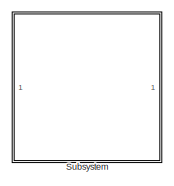
[diagram: root canvas - part 1/3, top right region]
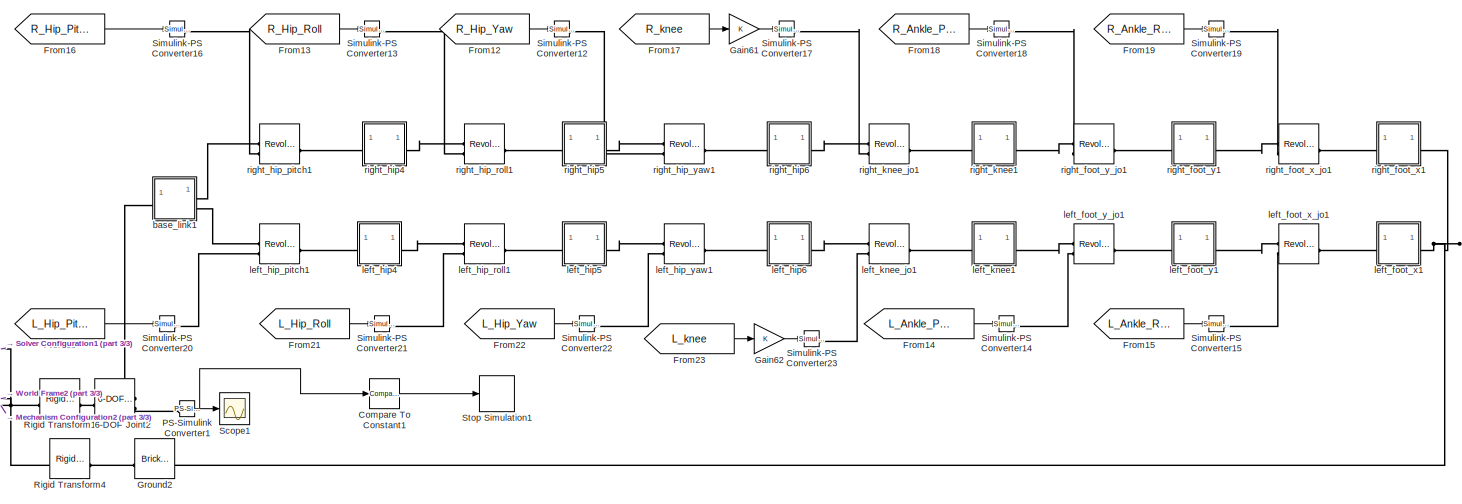
[diagram: root canvas - part 2/3, bottom center region]
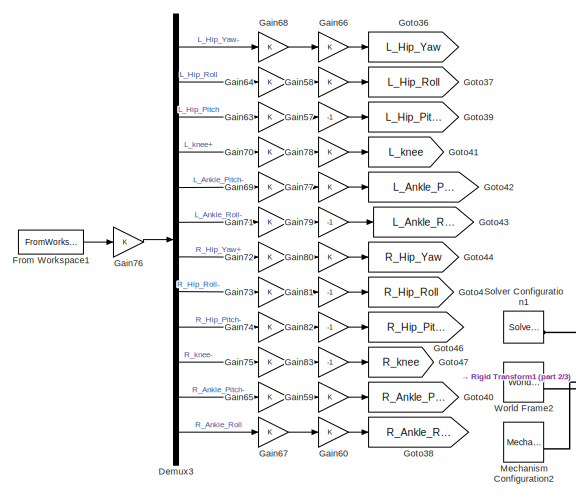
[diagram: root canvas - part 3/3, bottom left region]
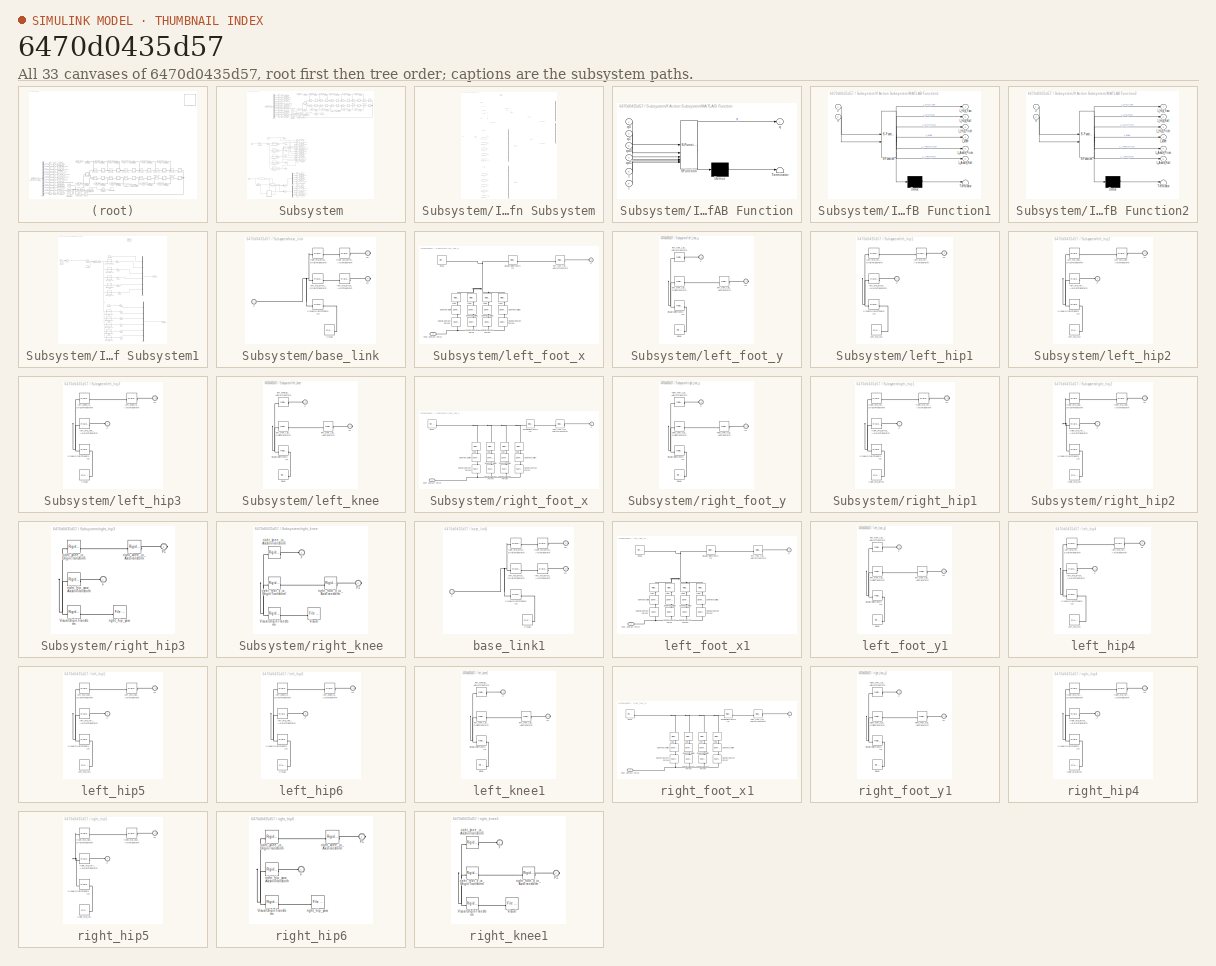
[diagram: thumbnail index - all 33 canvases of the model, root first then tree order]
MODEL slx_6470d0435d57
KIND model
CONFIG AbsTol = auto
CONFIG EnableMultiTasking = off
CONFIG FixedStep = auto
CONFIG InitFcn = k=0.0001;
CONFIG MaxStep = auto
CONFIG MinStep = auto
CONFIG PreLoadFcn = k=0.0001;
CONFIG RelTol = 1e-3
CONFIG SampleTimeConstraint = Unconstrained
CONFIG SolverName = FixedStepAuto
CONFIG StartTime = 0.0
CONFIG StopTime = 90
BLOCK [Reference] 6-DOF Joint2  REF=sm_lib/Joints/6-DOF Joint
  SourceBlock = sm_lib/Joints/6-DOF Joint
  SourceType = 6-DOF Joint
BLOCK [Reference] Compare To Constant1  REF=simulink/Logic and Bit
Operations/Compare
To Constant
  SourceBlock = simulink/Logic and Bit\nOperations/Compare\nTo Constant
  SourceType = Compare To Constant
BLOCK [Demux] Demux3
  Outputs = 12
BLOCK [FromWorkspace] From Workspace1
  VariableName = q
BLOCK [From] From12
  GotoTag = R_Hip_Yaw
BLOCK [From] From13
  GotoTag = R_Hip_Roll
BLOCK [From] From14
  GotoTag = L_Ankle_Pitch
BLOCK [From] From15
  GotoTag = L_Ankle_Roll
BLOCK [From] From16
  GotoTag = R_Hip_Pitch
BLOCK [From] From17
  GotoTag = R_knee
BLOCK [From] From18
  GotoTag = R_Ankle_Pitch
BLOCK [From] From19
  GotoTag = R_Ankle_Roll
BLOCK [From] From20
  GotoTag = L_Hip_Pitch
BLOCK [From] From21
  GotoTag = L_Hip_Roll
BLOCK [From] From22
  GotoTag = L_Hip_Yaw
BLOCK [From] From23
  GotoTag = L_knee
BLOCK [Gain] Gain57
  Gain = -1
BLOCK [Gain] Gain58
BLOCK [Gain] Gain59
BLOCK [Gain] Gain60
BLOCK [Gain] Gain61
BLOCK [Gain] Gain62
BLOCK [Gain] Gain63
BLOCK [Gain] Gain64
BLOCK [Gain] Gain65
BLOCK [Gain] Gain66
BLOCK [Gain] Gain67
BLOCK [Gain] Gain68
BLOCK [Gain] Gain69
BLOCK [Gain] Gain70
BLOCK [Gain] Gain71
BLOCK [Gain] Gain72
BLOCK [Gain] Gain73
BLOCK [Gain] Gain74
BLOCK [Gain] Gain75
BLOCK [Gain] Gain76
BLOCK [Gain] Gain77
BLOCK [Gain] Gain78
BLOCK [Gain] Gain79
  Gain = -1
BLOCK [Gain] Gain80
BLOCK [Gain] Gain81
  Gain = -1
BLOCK [Gain] Gain82
  Gain = -1
BLOCK [Gain] Gain83
  Gain = -1
BLOCK [Goto] Goto36
  GotoTag = L_Hip_Yaw
BLOCK [Goto] Goto37
  GotoTag = L_Hip_Roll
BLOCK [Goto] Goto38
  GotoTag = R_Ankle_Roll
BLOCK [Goto] Goto39
  GotoTag = L_Hip_Pitch
BLOCK [Goto] Goto40
  GotoTag = R_Ankle_Pitch
BLOCK [Goto] Goto41
  GotoTag = L_knee
BLOCK [Goto] Goto42
  GotoTag = L_Ankle_Pitch
BLOCK [Goto] Goto43
  GotoTag = L_Ankle_Roll
BLOCK [Goto] Goto44
  GotoTag = R_Hip_Yaw
BLOCK [Goto] Goto45
  GotoTag = R_Hip_Roll
BLOCK [Goto] Goto46
  GotoTag = R_Hip_Pitch
BLOCK [Goto] Goto47
  GotoTag = R_knee
BLOCK [Reference] Ground2  REF=sm_lib/Body Elements/Brick Solid
  NameLocation = top
  SourceBlock = sm_lib/Body Elements/Brick Solid
  SourceType = Brick Solid
BLOCK [Reference] Mechanism Configuration2  REF=sm_lib/Utilities/Mechanism
Configuration
  SourceBlock = sm_lib/Utilities/Mechanism\nConfiguration
  SourceType = Mechanism\nConfiguration
BLOCK [Reference] PS-Simulink Converter1  REF=nesl_utility/PS-Simulink
Converter
  SourceBlock = nesl_utility/PS-Simulink\nConverter
  SourceType = PS-Simulink\nConverter
BLOCK [Reference] Rigid Transform1  REF=sm_lib/Frames and
Transforms/Rigid
Transform
  SourceBlock = sm_lib/Frames and\nTransforms/Rigid\nTransform
  SourceType = Rigid\nTransform
BLOCK [Reference] Rigid Transform4  REF=sm_lib/Frames and
Transforms/Rigid
Transform
  SourceBlock = sm_lib/Frames and\nTransforms/Rigid\nTransform
  SourceType = Rigid\nTransform
BLOCK [Scope] Scope1
  Floating = off
  NumInputPorts = 1
  ScopeSpecificationString = Simulink.scopes.TimeScopeBlockCfg('CurrentConfiguration', extmgr.ConfigurationSet(extmgr.Configuration('Core','General UI',true),extmgr.Configuration('Core','Source UI',true),extmgr.Configuration('Sources','WiredSimulink',true,'DataLoggingVariableName','ScopeData1'),extmgr.Configuration('Visuals','Time Domain',true,'SerializedDisplays',{struct('MinYLimReal','-0.04674','MaxYLimReal','0.00743','YLab...<+1481ch>
BLOCK [Reference] Simulink-PS Converter12  REF=nesl_utility/Simulink-PS
Converter
  SourceBlock = nesl_utility/Simulink-PS\nConverter
  SourceType = Simulink-PS\nConverter
BLOCK [Reference] Simulink-PS Converter13  REF=nesl_utility/Simulink-PS
Converter
  SourceBlock = nesl_utility/Simulink-PS\nConverter
  SourceType = Simulink-PS\nConverter
BLOCK [Reference] Simulink-PS Converter14  REF=nesl_utility/Simulink-PS
Converter
  SourceBlock = nesl_utility/Simulink-PS\nConverter
  SourceType = Simulink-PS\nConverter
BLOCK [Reference] Simulink-PS Converter15  REF=nesl_utility/Simulink-PS
Converter
  SourceBlock = nesl_utility/Simulink-PS\nConverter
  SourceType = Simulink-PS\nConverter
BLOCK [Reference] Simulink-PS Converter16  REF=nesl_utility/Simulink-PS
Converter
  SourceBlock = nesl_utility/Simulink-PS\nConverter
  SourceType = Simulink-PS\nConverter
BLOCK [Reference] Simulink-PS Converter17  REF=nesl_utility/Simulink-PS
Converter
  SourceBlock = nesl_utility/Simulink-PS\nConverter
  SourceType = Simulink-PS\nConverter
BLOCK [Reference] Simulink-PS Converter18  REF=nesl_utility/Simulink-PS
Converter
  SourceBlock = nesl_utility/Simulink-PS\nConverter
  SourceType = Simulink-PS\nConverter
BLOCK [Reference] Simulink-PS Converter19  REF=nesl_utility/Simulink-PS
Converter
  SourceBlock = nesl_utility/Simulink-PS\nConverter
  SourceType = Simulink-PS\nConverter
BLOCK [Reference] Simulink-PS Converter20  REF=nesl_utility/Simulink-PS
Converter
  SourceBlock = nesl_utility/Simulink-PS\nConverter
  SourceType = Simulink-PS\nConverter
BLOCK [Reference] Simulink-PS Converter21  REF=nesl_utility/Simulink-PS
Converter
  SourceBlock = nesl_utility/Simulink-PS\nConverter
  SourceType = Simulink-PS\nConverter
BLOCK [Reference] Simulink-PS Converter22  REF=nesl_utility/Simulink-PS
Converter
  SourceBlock = nesl_utility/Simulink-PS\nConverter
  SourceType = Simulink-PS\nConverter
BLOCK [Reference] Simulink-PS Converter23  REF=nesl_utility/Simulink-PS
Converter
  SourceBlock = nesl_utility/Simulink-PS\nConverter
  SourceType = Simulink-PS\nConverter
BLOCK [Reference] Solver Configuration1  REF=nesl_utility/Solver
Configuration
  SourceBlock = nesl_utility/Solver\nConfiguration
  SourceType = Solver\nConfiguration
BLOCK [Stop] Stop Simulation1
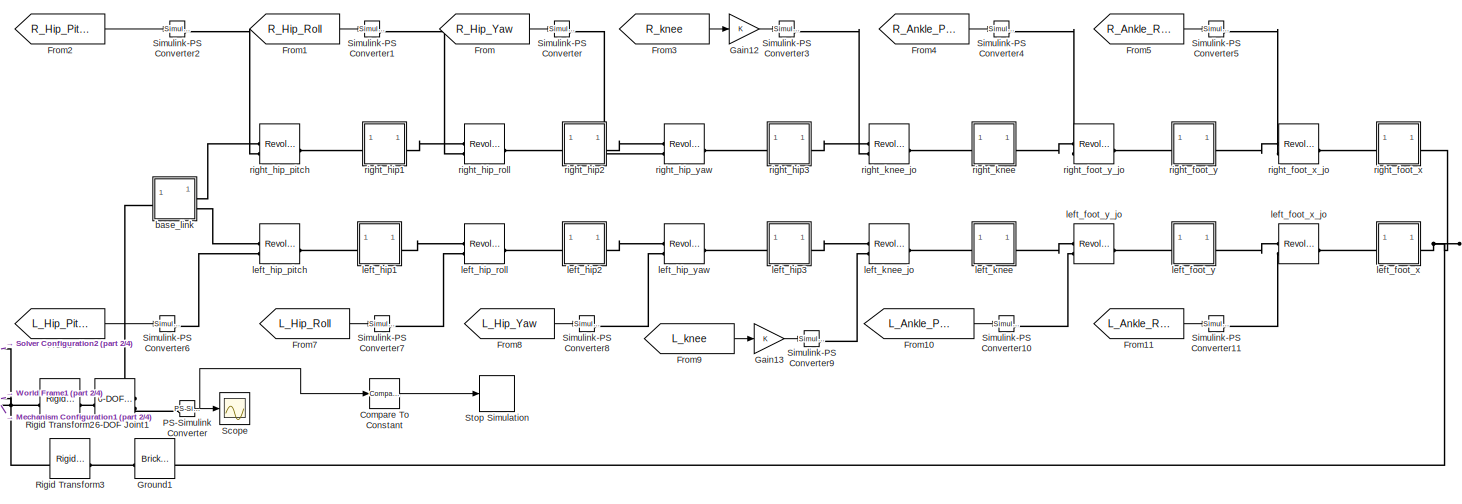
[diagram: Subsystem - part 1/4, top right region]
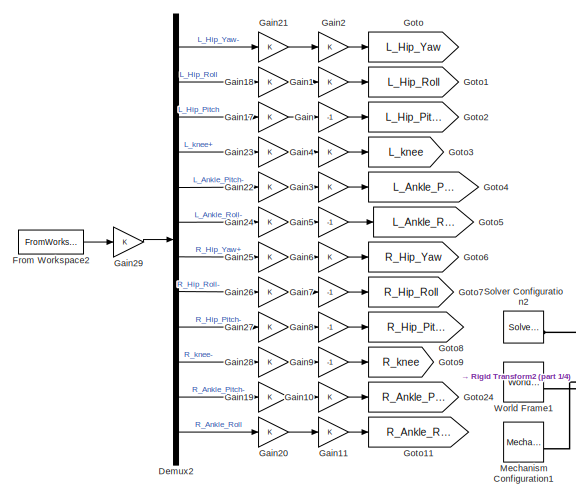
[diagram: Subsystem - part 2/4, top left region]
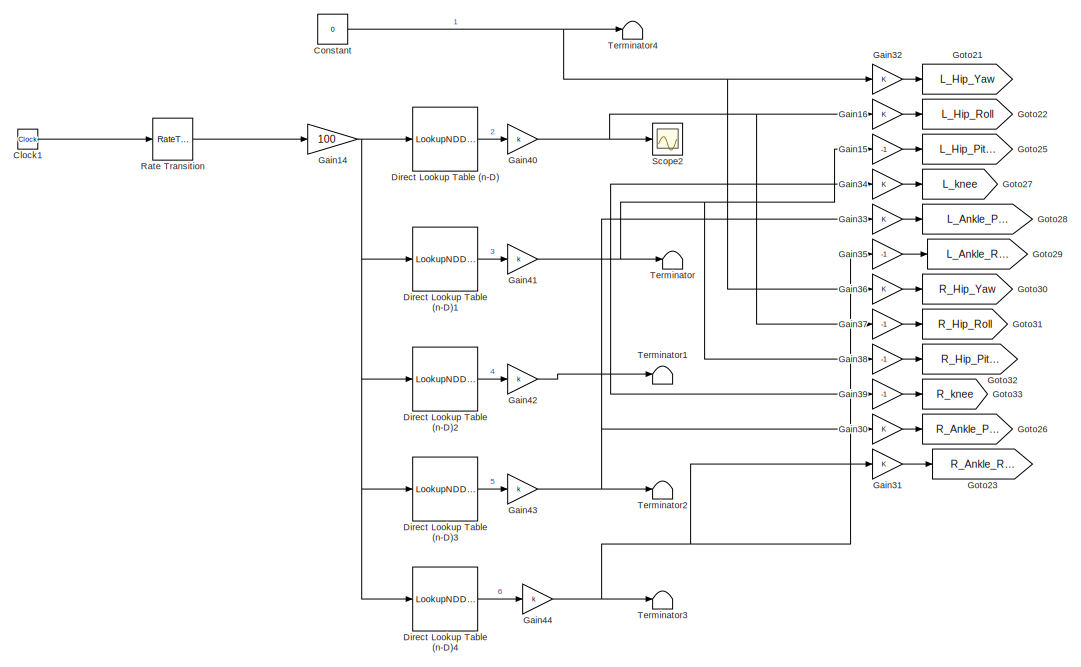
[diagram: Subsystem - part 3/4, middle left region]
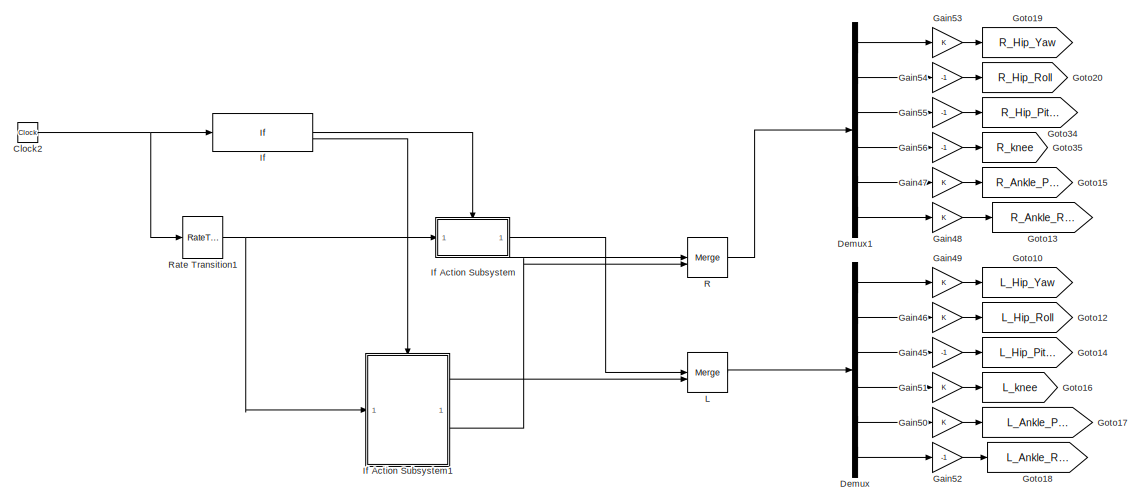
[diagram: Subsystem - part 4/4, bottom left region]
BLOCK [SubSystem] Subsystem
  Commented = on
BLOCK [Reference] Subsystem/6-DOF Joint1  REF=sm_lib/Joints/6-DOF Joint
  Commented = on
  SourceBlock = sm_lib/Joints/6-DOF Joint
  SourceType = 6-DOF Joint
BLOCK [Clock] Subsystem/Clock1
  Commented = on
BLOCK [Clock] Subsystem/Clock2
  Commented = on
  Decimation = 5
BLOCK [Reference] Subsystem/Compare To Constant  REF=simulink/Logic and Bit
Operations/Compare
To Constant
  Commented = on
  SourceBlock = simulink/Logic and Bit\nOperations/Compare\nTo Constant
  SourceType = Compare To Constant
BLOCK [Constant] Subsystem/Constant
  Commented = on
  SampleTime = 0.01
  Value = 0
BLOCK [Demux] Subsystem/Demux
  Commented = on
  Outputs = 6
BLOCK [Demux] Subsystem/Demux1
  Commented = on
  Outputs = 6
BLOCK [Demux] Subsystem/Demux2
  Commented = on
  Outputs = 12
BLOCK [LookupNDDirect] Subsystem/Direct Lookup Table (n-D)
  Commented = on
  NumberOfTableDimensions = 1
  RemoveProtectionInput = on
  Table = [0;0;0;0;0;0;0;0;0;0;0;0;0;0;0;0;0;0;0;0;0;0;0;0;0;0;0;0;0;0;0;0;0;0;0;0;0;0;0;0;0;0;0;0;0;0;0;0;0;0;0;0;0;0;0;0;0;0;0;0;0;0;0;0;0;0;0;0;0;0;0;0;0;0;0;0;0;0;0;0;0;0;0;0;0;0;0;0;0;0;0;0;0;0;0;0;0;0;0;0;0;0;0;0;0;-1;-1;-2;-4;-6;-9;-12;-17;-22;-29;-37;-46;-57;-69;-83;-99;-117;-137;-159;-183;-209;-238;-269;-303;-339;-378;-420;-463;-510;-559;-610;-664;-720;-779;-839;-902;-966;-1032;-1100;-1169;-1238;-1...<+320ch>
BLOCK [LookupNDDirect] Subsystem/Direct Lookup Table (n-D)1
  Commented = on
  NumberOfTableDimensions = 1
  RemoveProtectionInput = on
  Table = [0;0;0;0;0;0;0;0;0;0;0;0;0;0;0;0;0;0;0;0;0;0;0;0;0;0;0;0;0;0;0;0;0;0;0;0;0;0;0;0;0;0;0;0;0;0;0;0;0;0;223;277;396;536;683;832;981;1128;1274;1418;1560;1699;1837;1971;2103;2233;2360;2484;2606;2724;2840;2953;3063;3170;3273;3374;3472;3566;3657;3745;3830;3911;3989;4063;4134;4201;4264;4324;4380;4432;4480;4524;4564;4600;4631;4658;4681;4698;4711;4719;4719;4719;4719;4719;4719;4719;4719;4719;4719;4719;4719;4...<+449ch>  <repeated x3 — deduplicated; at blocks: Direct Lookup Table (n-D)1, Direct Lookup Table (n-D)6>
BLOCK [LookupNDDirect] Subsystem/Direct Lookup Table (n-D)2
  Commented = on
  NumberOfTableDimensions = 1
  RemoveProtectionInput = on
  Table = [0;0;0;0;0;0;0;0;0;0;0;0;0;0;0;0;0;0;0;0;0;0;0;0;0;0;0;0;0;0;0;0;0;0;0;0;0;0;0;0;0;0;0;0;0;0;0;0;0;0;552;688;983;1332;1697;2067;2437;2805;3169;3528;3883;4233;4578;4917;5250;5577;5899;6214;6523;6826;7123;7412;7695;7972;8241;8503;8758;9005;9244;9476;9700;9916;10123;10322;10511;10692;10864;11026;11178;11320;11452;11573;11683;11781;11868;11943;12005;12054;12090;12112;12112;12112;12112;12112;12112;1211...<+572ch>  <repeated x3 — deduplicated; at blocks: Direct Lookup Table (n-D)2, Direct Lookup Table (n-D)7>
BLOCK [LookupNDDirect] Subsystem/Direct Lookup Table (n-D)3
  Commented = on
  NumberOfTableDimensions = 1
  RemoveProtectionInput = on
  Table = [0;0;0;0;0;0;0;0;0;0;0;0;0;0;0;0;0;0;0;0;0;0;0;0;0;0;0;0;0;0;0;0;0;0;0;0;0;0;0;0;0;0;0;0;0;0;0;0;0;0;330;411;587;795;1014;1235;1456;1676;1895;2110;2323;2534;2741;2945;3146;3344;3539;3730;3918;4102;4283;4460;4633;4802;4967;5129;5286;5439;5587;5731;5870;6005;6134;6259;6378;6491;6599;6702;6798;6888;6972;7048;7119;7181;7237;7285;7324;7356;7379;7393;7393;7393;7393;7393;7393;7393;7393;7393;7393;7393;739...<+452ch>  <repeated x3 — deduplicated; at blocks: Direct Lookup Table (n-D)3, Direct Lookup Table (n-D)8>
BLOCK [LookupNDDirect] Subsystem/Direct Lookup Table (n-D)4
  Commented = on
  NumberOfTableDimensions = 1
  RemoveProtectionInput = on
  Table = [0;0;0;0;0;0;0;0;0;0;0;0;0;0;0;0;0;0;0;0;0;0;0;0;0;0;0;0;0;0;0;0;0;0;0;0;0;0;0;0;0;0;0;0;0;0;0;0;0;0;0;0;0;0;0;0;0;0;0;0;0;0;0;0;0;0;0;0;0;0;0;0;0;0;0;0;0;0;0;0;0;0;0;0;0;0;0;0;0;0;0;0;0;0;0;0;0;0;0;0;0;0;0;0;0;1;1;2;4;6;9;12;17;22;29;37;46;57;69;83;99;117;137;159;183;209;238;269;303;339;378;420;463;510;559;610;664;720;779;839;902;966;1032;1100;1169;1238;1309;1380;1451;1523;1593;1664;1733;1802;187...<+224ch>
BLOCK [From] Subsystem/From
  Commented = on
  GotoTag = R_Hip_Yaw
BLOCK [FromWorkspace] Subsystem/From Workspace2
  Commented = on
  VariableName = q
BLOCK [From] Subsystem/From1
  Commented = on
  GotoTag = R_Hip_Roll
BLOCK [From] Subsystem/From10
  Commented = on
  GotoTag = L_Ankle_Pitch
BLOCK [From] Subsystem/From11
  Commented = on
  GotoTag = L_Ankle_Roll
BLOCK [From] Subsystem/From2
  Commented = on
  GotoTag = R_Hip_Pitch
BLOCK [From] Subsystem/From3
  Commented = on
  GotoTag = R_knee
BLOCK [From] Subsystem/From4
  Commented = on
  GotoTag = R_Ankle_Pitch
BLOCK [From] Subsystem/From5
  Commented = on
  GotoTag = R_Ankle_Roll
BLOCK [From] Subsystem/From6
  Commented = on
  GotoTag = L_Hip_Pitch
BLOCK [From] Subsystem/From7
  Commented = on
  GotoTag = L_Hip_Roll
BLOCK [From] Subsystem/From8
  Commented = on
  GotoTag = L_Hip_Yaw
BLOCK [From] Subsystem/From9
  Commented = on
  GotoTag = L_knee
BLOCK [Gain] Subsystem/Gain
  Commented = on
  Gain = -1
BLOCK [Gain] Subsystem/Gain1
  Commented = on
BLOCK [Gain] Subsystem/Gain10
  Commented = on
BLOCK [Gain] Subsystem/Gain11
  Commented = on
BLOCK [Gain] Subsystem/Gain12
  Commented = on
BLOCK [Gain] Subsystem/Gain13
  Commented = on
BLOCK [Gain] Subsystem/Gain14
  Commented = on
  Gain = 100
BLOCK [Gain] Subsystem/Gain15
  Commented = on
  Gain = -1
BLOCK [Gain] Subsystem/Gain16
  Commented = on
BLOCK [Gain] Subsystem/Gain17
  Commented = on
BLOCK [Gain] Subsystem/Gain18
  Commented = on
BLOCK [Gain] Subsystem/Gain19
  Commented = on
BLOCK [Gain] Subsystem/Gain2
  Commented = on
BLOCK [Gain] Subsystem/Gain20
  Commented = on
BLOCK [Gain] Subsystem/Gain21
  Commented = on
BLOCK [Gain] Subsystem/Gain22
  Commented = on
BLOCK [Gain] Subsystem/Gain23
  Commented = on
BLOCK [Gain] Subsystem/Gain24
  Commented = on
BLOCK [Gain] Subsystem/Gain25
  Commented = on
BLOCK [Gain] Subsystem/Gain26
  Commented = on
BLOCK [Gain] Subsystem/Gain27
  Commented = on
BLOCK [Gain] Subsystem/Gain28
  Commented = on
BLOCK [Gain] Subsystem/Gain29
  Commented = on
BLOCK [Gain] Subsystem/Gain3
  Commented = on
BLOCK [Gain] Subsystem/Gain30
  Commented = on
BLOCK [Gain] Subsystem/Gain31
  Commented = on
BLOCK [Gain] Subsystem/Gain32
  Commented = on
BLOCK [Gain] Subsystem/Gain33
  Commented = on
BLOCK [Gain] Subsystem/Gain34
  Commented = on
BLOCK [Gain] Subsystem/Gain35
  Commented = on
  Gain = -1
BLOCK [Gain] Subsystem/Gain36
  Commented = on
BLOCK [Gain] Subsystem/Gain37
  Commented = on
  Gain = -1
BLOCK [Gain] Subsystem/Gain38
  Commented = on
  Gain = -1
BLOCK [Gain] Subsystem/Gain39
  Commented = on
  Gain = -1
BLOCK [Gain] Subsystem/Gain4
  Commented = on
BLOCK [Gain] Subsystem/Gain40
  Commented = on
  Gain = k
BLOCK [Gain] Subsystem/Gain41
  Commented = on
  Gain = k
BLOCK [Gain] Subsystem/Gain42
  Commented = on
  Gain = k
BLOCK [Gain] Subsystem/Gain43
  Commented = on
  Gain = k
BLOCK [Gain] Subsystem/Gain44
  Commented = on
  Gain = k
BLOCK [Gain] Subsystem/Gain45
  Commented = on
  Gain = -1
BLOCK [Gain] Subsystem/Gain46
  Commented = on
BLOCK [Gain] Subsystem/Gain47
  Commented = on
BLOCK [Gain] Subsystem/Gain48
  Commented = on
BLOCK [Gain] Subsystem/Gain49
  Commented = on
BLOCK [Gain] Subsystem/Gain5
  Commented = on
  Gain = -1
BLOCK [Gain] Subsystem/Gain50
  Commented = on
BLOCK [Gain] Subsystem/Gain51
  Commented = on
BLOCK [Gain] Subsystem/Gain52
  Commented = on
  Gain = -1
BLOCK [Gain] Subsystem/Gain53
  Commented = on
BLOCK [Gain] Subsystem/Gain54
  Commented = on
  Gain = -1
BLOCK [Gain] Subsystem/Gain55
  Commented = on
  Gain = -1
BLOCK [Gain] Subsystem/Gain56
  Commented = on
  Gain = -1
BLOCK [Gain] Subsystem/Gain6
  Commented = on
BLOCK [Gain] Subsystem/Gain7
  Commented = on
  Gain = -1
BLOCK [Gain] Subsystem/Gain8
  Commented = on
  Gain = -1
BLOCK [Gain] Subsystem/Gain9
  Commented = on
  Gain = -1
BLOCK [Goto] Subsystem/Goto
  Commented = on
  GotoTag = L_Hip_Yaw
BLOCK [Goto] Subsystem/Goto1
  Commented = on
  GotoTag = L_Hip_Roll
BLOCK [Goto] Subsystem/Goto10
  Commented = on
  GotoTag = L_Hip_Yaw
BLOCK [Goto] Subsystem/Goto11
  Commented = on
  GotoTag = R_Ankle_Roll
BLOCK [Goto] Subsystem/Goto12
  Commented = on
  GotoTag = L_Hip_Roll
BLOCK [Goto] Subsystem/Goto13
  Commented = on
  GotoTag = R_Ankle_Roll
BLOCK [Goto] Subsystem/Goto14
  Commented = on
  GotoTag = L_Hip_Pitch
BLOCK [Goto] Subsystem/Goto15
  Commented = on
  GotoTag = R_Ankle_Pitch
BLOCK [Goto] Subsystem/Goto16
  Commented = on
  GotoTag = L_knee
BLOCK [Goto] Subsystem/Goto17
  Commented = on
  GotoTag = L_Ankle_Pitch
BLOCK [Goto] Subsystem/Goto18
  Commented = on
  GotoTag = L_Ankle_Roll
BLOCK [Goto] Subsystem/Goto19
  Commented = on
  GotoTag = R_Hip_Yaw
BLOCK [Goto] Subsystem/Goto2
  Commented = on
  GotoTag = L_Hip_Pitch
BLOCK [Goto] Subsystem/Goto20
  Commented = on
  GotoTag = R_Hip_Roll
BLOCK [Goto] Subsystem/Goto21
  Commented = on
  GotoTag = L_Hip_Yaw
BLOCK [Goto] Subsystem/Goto22
  Commented = on
  GotoTag = L_Hip_Roll
BLOCK [Goto] Subsystem/Goto23
  Commented = on
  GotoTag = R_Ankle_Roll
BLOCK [Goto] Subsystem/Goto24
  Commented = on
  GotoTag = R_Ankle_Pitch
BLOCK [Goto] Subsystem/Goto25
  Commented = on
  GotoTag = L_Hip_Pitch
BLOCK [Goto] Subsystem/Goto26
  Commented = on
  GotoTag = R_Ankle_Pitch
BLOCK [Goto] Subsystem/Goto27
  Commented = on
  GotoTag = L_knee
BLOCK [Goto] Subsystem/Goto28
  Commented = on
  GotoTag = L_Ankle_Pitch
BLOCK [Goto] Subsystem/Goto29
  Commented = on
  GotoTag = L_Ankle_Roll
BLOCK [Goto] Subsystem/Goto3
  Commented = on
  GotoTag = L_knee
BLOCK [Goto] Subsystem/Goto30
  Commented = on
  GotoTag = R_Hip_Yaw
BLOCK [Goto] Subsystem/Goto31
  Commented = on
  GotoTag = R_Hip_Roll
BLOCK [Goto] Subsystem/Goto32
  Commented = on
  GotoTag = R_Hip_Pitch
BLOCK [Goto] Subsystem/Goto33
  Commented = on
  GotoTag = R_knee
BLOCK [Goto] Subsystem/Goto34
  Commented = on
  GotoTag = R_Hip_Pitch
BLOCK [Goto] Subsystem/Goto35
  Commented = on
  GotoTag = R_knee
BLOCK [Goto] Subsystem/Goto4
  Commented = on
  GotoTag = L_Ankle_Pitch
BLOCK [Goto] Subsystem/Goto5
  Commented = on
  GotoTag = L_Ankle_Roll
BLOCK [Goto] Subsystem/Goto6
  Commented = on
  GotoTag = R_Hip_Yaw
BLOCK [Goto] Subsystem/Goto7
  Commented = on
  GotoTag = R_Hip_Roll
BLOCK [Goto] Subsystem/Goto8
  Commented = on
  GotoTag = R_Hip_Pitch
BLOCK [Goto] Subsystem/Goto9
  Commented = on
  GotoTag = R_knee
BLOCK [Reference] Subsystem/Ground1  REF=sm_lib/Body Elements/Brick Solid
  Commented = on
  NameLocation = top
  SourceBlock = sm_lib/Body Elements/Brick Solid
  SourceType = Brick Solid
BLOCK [If] Subsystem/If
  Commented = on
  IfExpression = u1<= 2
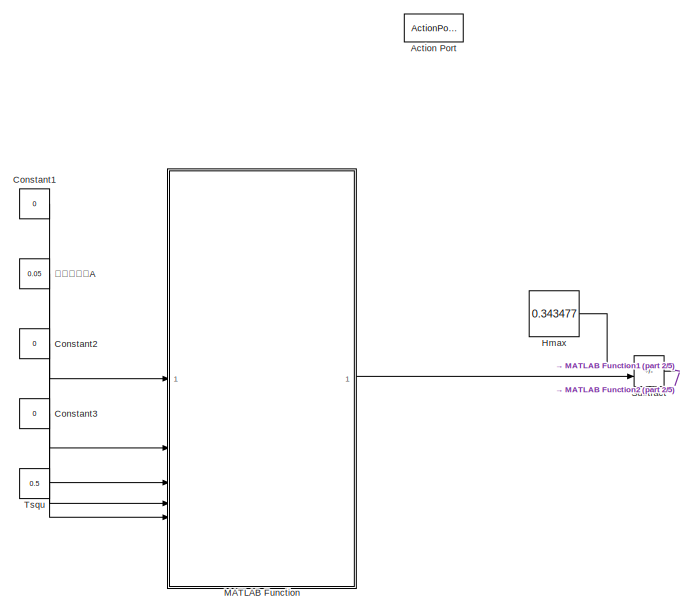
[diagram: Subsystem/If Action Subsystem - part 1/5, top center region]
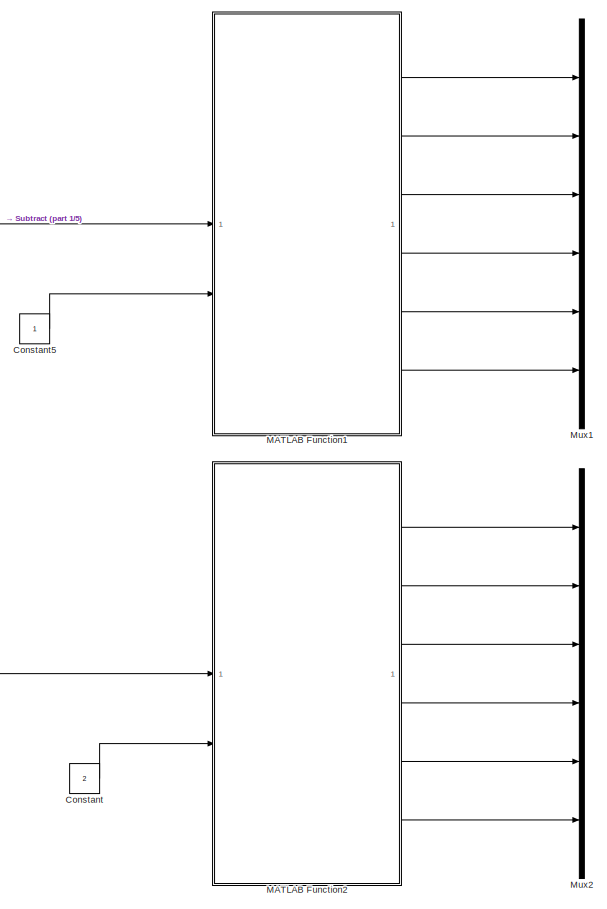
[diagram: Subsystem/If Action Subsystem - part 2/5, top right region]
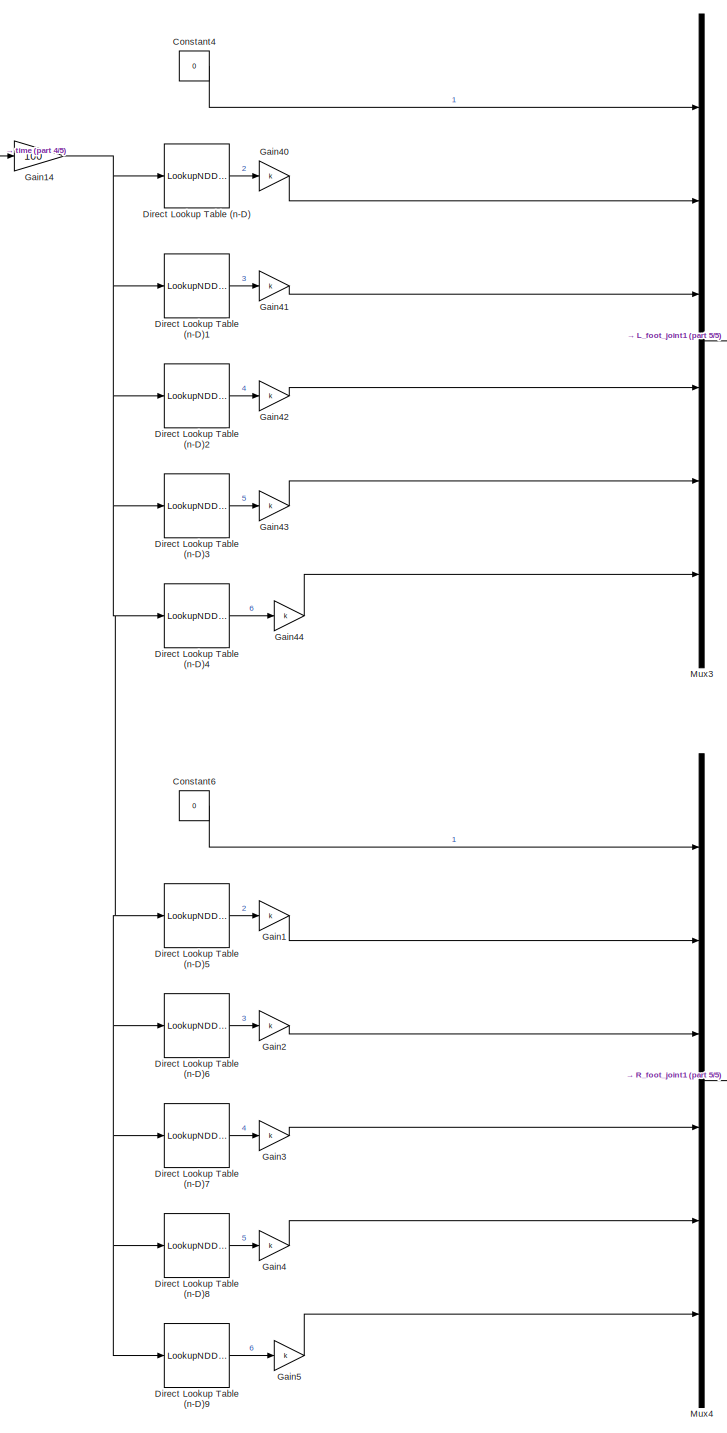
[diagram: Subsystem/If Action Subsystem - part 3/5, middle left region]
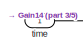
[diagram: Subsystem/If Action Subsystem - part 4/5, middle left region]
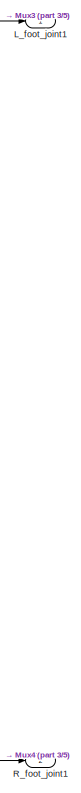
[diagram: Subsystem/If Action Subsystem - part 5/5, central region]
BLOCK [SubSystem] Subsystem/If Action Subsystem
  Commented = on
  TreatAsAtomicUnit = on
BLOCK [ActionPort] Subsystem/If Action Subsystem/Action Port
  ActionPortLabel = if(u1<= 2)
BLOCK [Constant] Subsystem/If Action Subsystem/Constant
  Commented = on
  Value = 2
BLOCK [Constant] Subsystem/If Action Subsystem/Constant1
  Commented = on
  Value = 0
BLOCK [Constant] Subsystem/If Action Subsystem/Constant2
  Commented = on
  Value = 0
BLOCK [Constant] Subsystem/If Action Subsystem/Constant3
  Commented = on
  Value = 0
BLOCK [Constant] Subsystem/If Action Subsystem/Constant4
  SampleTime = -1
  Value = 0
BLOCK [Constant] Subsystem/If Action Subsystem/Constant5
  Commented = on
BLOCK [Constant] Subsystem/If Action Subsystem/Constant6
  SampleTime = -1
  Value = 0
BLOCK [LookupNDDirect] Subsystem/If Action Subsystem/Direct Lookup Table (n-D)
  NumberOfTableDimensions = 1
  RemoveProtectionInput = on
  Table = [0;0;0;0;0;0;0;0;0;0;0;0;0;0;0;0;0;0;0;0;0;0;0;0;0;0;0;0;0;0;0;0;0;0;0;0;0;0;0;0;0;0;0;0;0;0;0;0;0;0;0;0;0;0;0;0;0;0;0;0;0;0;0;0;0;0;0;0;0;0;0;0;0;0;0;0;0;0;0;0;0;0;0;0;0;0;0;0;0;0;0;0;0;0;0;0;0;0;0;0;0;0;0;0;0;-1;-1;-2;-4;-6;-9;-12;-17;-22;-29;-37;-46;-57;-69;-83;-99;-117;-137;-159;-183;-209;-238;-269;-303;-339;-378;-420;-463;-510;-559;-610;-664;-720;-779;-839;-902;-966;-1032;-1100;-1169;-1238;-1...<+320ch>
BLOCK [LookupNDDirect] Subsystem/If Action Subsystem/Direct Lookup Table (n-D)1
  NumberOfTableDimensions = 1
  RemoveProtectionInput = on
BLOCK [LookupNDDirect] Subsystem/If Action Subsystem/Direct Lookup Table (n-D)2
  NumberOfTableDimensions = 1
  RemoveProtectionInput = on
BLOCK [LookupNDDirect] Subsystem/If Action Subsystem/Direct Lookup Table (n-D)3
  NumberOfTableDimensions = 1
  RemoveProtectionInput = on
BLOCK [LookupNDDirect] Subsystem/If Action Subsystem/Direct Lookup Table (n-D)4
  NumberOfTableDimensions = 1
  RemoveProtectionInput = on
  Table = [0;0;0;0;0;0;0;0;0;0;0;0;0;0;0;0;0;0;0;0;0;0;0;0;0;0;0;0;0;0;0;0;0;0;0;0;0;0;0;0;0;0;0;0;0;0;0;0;0;0;0;0;0;0;0;0;0;0;0;0;0;0;0;0;0;0;0;0;0;0;0;0;0;0;0;0;0;0;0;0;0;0;0;0;0;0;0;0;0;0;0;0;0;0;0;0;0;0;0;0;0;0;0;0;0;1;1;2;4;6;9;12;17;22;29;37;46;57;69;83;99;117;137;159;183;209;238;269;303;339;378;420;463;510;559;610;664;720;779;839;902;966;1032;1100;1169;1238;1309;1380;1451;1523;1593;1664;1733;1802;187...<+224ch>
BLOCK [LookupNDDirect] Subsystem/If Action Subsystem/Direct Lookup Table (n-D)5
  NumberOfTableDimensions = 1
  RemoveProtectionInput = on
  Table = [0;0;0;0;0;0;0;0;0;0;0;0;0;0;0;0;0;0;0;0;0;0;0;0;0;0;0;0;0;0;0;0;0;0;0;0;0;0;0;0;0;0;0;0;0;0;0;0;0;0;0;0;0;0;0;0;0;0;0;0;0;0;0;0;0;0;0;0;0;0;0;0;0;0;0;0;0;0;0;0;0;0;0;0;0;0;0;0;0;0;0;0;0;0;0;0;0;0;0;0;0;0;0;0;0;-1;-1;-2;-4;-6;-9;-12;-17;-22;-29;-37;-46;-57;-69;-83;-99;-117;-137;-159;-183;-209;-238;-269;-303;-339;-378;-420;-463;-510;-559;-610;-664;-720;-779;-839;-902;-966;-1032;-1100;-1169;-1238;-1...<+319ch>
BLOCK [LookupNDDirect] Subsystem/If Action Subsystem/Direct Lookup Table (n-D)6
  NumberOfTableDimensions = 1
  RemoveProtectionInput = on
BLOCK [LookupNDDirect] Subsystem/If Action Subsystem/Direct Lookup Table (n-D)7
  NumberOfTableDimensions = 1
  RemoveProtectionInput = on
BLOCK [LookupNDDirect] Subsystem/If Action Subsystem/Direct Lookup Table (n-D)8
  NumberOfTableDimensions = 1
  RemoveProtectionInput = on
BLOCK [LookupNDDirect] Subsystem/If Action Subsystem/Direct Lookup Table (n-D)9
  NumberOfTableDimensions = 1
  RemoveProtectionInput = on
  Table = [0;0;0;0;0;0;0;0;0;0;0;0;0;0;0;0;0;0;0;0;0;0;0;0;0;0;0;0;0;0;0;0;0;0;0;0;0;0;0;0;0;0;0;0;0;0;0;0;0;0;0;0;0;0;0;0;0;0;0;0;0;0;0;0;0;0;0;0;0;0;0;0;0;0;0;0;0;0;0;0;0;0;0;0;0;0;0;0;0;0;0;0;0;0;0;0;0;0;0;0;0;0;0;0;0;1;1;2;4;6;9;12;17;22;29;37;46;57;69;83;99;117;137;159;183;209;238;269;303;339;378;420;463;510;559;610;664;720;779;839;902;966;1032;1100;1169;1238;1309;1380;1451;1523;1593;1664;1733;1801;186...<+223ch>
BLOCK [Gain] Subsystem/If Action Subsystem/Gain1
  Gain = k
BLOCK [Gain] Subsystem/If Action Subsystem/Gain14
  Gain = 100
BLOCK [Gain] Subsystem/If Action Subsystem/Gain2
  Gain = k
BLOCK [Gain] Subsystem/If Action Subsystem/Gain3
  Gain = k
BLOCK [Gain] Subsystem/If Action Subsystem/Gain4
  Gain = k
BLOCK [Gain] Subsystem/If Action Subsystem/Gain40
  Gain = k
BLOCK [Gain] Subsystem/If Action Subsystem/Gain41
  Gain = k
BLOCK [Gain] Subsystem/If Action Subsystem/Gain42
  Gain = k
BLOCK [Gain] Subsystem/If Action Subsystem/Gain43
  Gain = k
BLOCK [Gain] Subsystem/If Action Subsystem/Gain44
  Gain = k
BLOCK [Gain] Subsystem/If Action Subsystem/Gain5
  Gain = k
BLOCK [Constant] Subsystem/If Action Subsystem/Hmax
  Commented = on
  Value = 0.343477
BLOCK [Outport] Subsystem/If Action Subsystem/L_foot_joint1
BLOCK [SubSystem] Subsystem/If Action Subsystem/MATLAB Function
  Commented = on
  ErrorFcn = Stateflow.Translate.translate
  LibrarySourceBlock = simulink/User-Defined\nFunctions/MATLAB Function
  PermitHierarchicalResolution = ExplicitOnly
  SFBlockType = MATLAB Function
  TreatAsAtomicUnit = on
BLOCK [Demux] Subsystem/If Action Subsystem/MATLAB Function/ Demux 
  Outputs = 1
BLOCK [S-Function] Subsystem/If Action Subsystem/MATLAB Function/ SFunction 
  EnableBusSupport = on
  FunctionName = sf_sfun
  PortCounts = [6 2]
  SFcnIsStateOwnerBlock = off
  SFunctionDeploymentMode = off
  Tag = Stateflow S-Function 1
BLOCK [Terminator] Subsystem/If Action Subsystem/MATLAB Function/ Terminator 
BLOCK [Inport] Subsystem/If Action Subsystem/MATLAB Function/T
  Port = 5
BLOCK [Outport] Subsystem/If Action Subsystem/MATLAB Function/q
BLOCK [Inport] Subsystem/If Action Subsystem/MATLAB Function/q0
BLOCK [Inport] Subsystem/If Action Subsystem/MATLAB Function/q1
  Port = 2
BLOCK [Inport] Subsystem/If Action Subsystem/MATLAB Function/qd0
  Port = 3
BLOCK [Inport] Subsystem/If Action Subsystem/MATLAB Function/qd1
  Port = 4
BLOCK [Inport] Subsystem/If Action Subsystem/MATLAB Function/t
  Port = 6
BLOCK [SubSystem] Subsystem/If Action Subsystem/MATLAB Function1
  Commented = on
  ErrorFcn = Stateflow.Translate.translate
  LibrarySourceBlock = simulink/User-Defined\nFunctions/MATLAB Function
  PermitHierarchicalResolution = ExplicitOnly
  SFBlockType = MATLAB Function
  TreatAsAtomicUnit = on
BLOCK [Demux] Subsystem/If Action Subsystem/MATLAB Function1/ Demux 
  Outputs = 1
BLOCK [S-Function] Subsystem/If Action Subsystem/MATLAB Function1/ SFunction 
  EnableBusSupport = on
  FunctionName = sf_sfun
  PortCounts = [2 7]
  SFcnIsStateOwnerBlock = off
  SFunctionDeploymentMode = off
  Tag = Stateflow S-Function 3
BLOCK [Terminator] Subsystem/If Action Subsystem/MATLAB Function1/ Terminator 
BLOCK [Outport] Subsystem/If Action Subsystem/MATLAB Function1/L_Ankle_Pitch
  Port = 5
BLOCK [Outport] Subsystem/If Action Subsystem/MATLAB Function1/L_Ankle_Roll
  Port = 6
BLOCK [Outport] Subsystem/If Action Subsystem/MATLAB Function1/L_Hip_Pitch
  Port = 3
BLOCK [Outport] Subsystem/If Action Subsystem/MATLAB Function1/L_Hip_Roll
  Port = 2
BLOCK [Outport] Subsystem/If Action Subsystem/MATLAB Function1/L_Hip_Yaw
BLOCK [Outport] Subsystem/If Action Subsystem/MATLAB Function1/L_knee
  Port = 4
BLOCK [Inport] Subsystem/If Action Subsystem/MATLAB Function1/lr
  Port = 2
BLOCK [Inport] Subsystem/If Action Subsystem/MATLAB Function1/z
BLOCK [SubSystem] Subsystem/If Action Subsystem/MATLAB Function2
  Commented = on
  ErrorFcn = Stateflow.Translate.translate
  LibrarySourceBlock = simulink/User-Defined\nFunctions/MATLAB Function
  PermitHierarchicalResolution = ExplicitOnly
  SFBlockType = MATLAB Function
  TreatAsAtomicUnit = on
BLOCK [Demux] Subsystem/If Action Subsystem/MATLAB Function2/ Demux 
  Outputs = 1
BLOCK [S-Function] Subsystem/If Action Subsystem/MATLAB Function2/ SFunction 
  EnableBusSupport = on
  FunctionName = sf_sfun
  PortCounts = [2 7]
  SFcnIsStateOwnerBlock = off
  SFunctionDeploymentMode = off
  Tag = Stateflow S-Function 4
BLOCK [Terminator] Subsystem/If Action Subsystem/MATLAB Function2/ Terminator 
BLOCK [Outport] Subsystem/If Action Subsystem/MATLAB Function2/L_Ankle_Pitch
  Port = 5
BLOCK [Outport] Subsystem/If Action Subsystem/MATLAB Function2/L_Ankle_Roll
  Port = 6
BLOCK [Outport] Subsystem/If Action Subsystem/MATLAB Function2/L_Hip_Pitch
  Port = 3
BLOCK [Outport] Subsystem/If Action Subsystem/MATLAB Function2/L_Hip_Roll
  Port = 2
BLOCK [Outport] Subsystem/If Action Subsystem/MATLAB Function2/L_Hip_Yaw
BLOCK [Outport] Subsystem/If Action Subsystem/MATLAB Function2/L_knee
  Port = 4
BLOCK [Inport] Subsystem/If Action Subsystem/MATLAB Function2/lr
  Port = 2
BLOCK [Inport] Subsystem/If Action Subsystem/MATLAB Function2/z
BLOCK [Mux] Subsystem/If Action Subsystem/Mux1
  Commented = on
  DisplayOption = bar
  Inputs = 6
BLOCK [Mux] Subsystem/If Action Subsystem/Mux2
  Commented = on
  DisplayOption = bar
  Inputs = 6
BLOCK [Mux] Subsystem/If Action Subsystem/Mux3
  DisplayOption = bar
  Inputs = 6
BLOCK [Mux] Subsystem/If Action Subsystem/Mux4
  DisplayOption = bar
  Inputs = 6
BLOCK [Outport] Subsystem/If Action Subsystem/R_foot_joint1
  Port = 2
BLOCK [Sum] Subsystem/If Action Subsystem/Subtract
  Commented = on
  IconShape = rectangular
  Inputs = +-
BLOCK [Constant] Subsystem/If Action Subsystem/Tsqu
  Commented = on
  Value = 0.5
BLOCK [Inport] Subsystem/If Action Subsystem/time
BLOCK [Constant] Subsystem/If Action Subsystem/高度变化量A
  Commented = on
  Value = 0.05
BLOCK [SubSystem] Subsystem/If Action Subsystem1
  Commented = on
  TreatAsAtomicUnit = on
BLOCK [ActionPort] Subsystem/If Action Subsystem1/Action Port
  ActionPortLabel = else
BLOCK [Sum] Subsystem/If Action Subsystem1/Add1
  IconShape = rectangular
  Inputs = +-
BLOCK [Constant] Subsystem/If Action Subsystem1/Constant1
  SampleTime = -1
  Value = 0
BLOCK [Constant] Subsystem/If Action Subsystem1/Constant2
  Value = 2
BLOCK [Constant] Subsystem/If Action Subsystem1/Constant3
  SampleTime = -1
  Value = 0
BLOCK [Constant] Subsystem/If Action Subsystem1/Constant4
BLOCK [LookupNDDirect] Subsystem/If Action Subsystem1/Direct Lookup Table (n-D)
  NumberOfTableDimensions = 1
  RemoveProtectionInput = on
  Table = [93;232;369;505;638;767;893;1014;1131;1242;1348;1448;1541;1628;1709;1782;1848;1907;1958;2002;2038;2066;2086;2099;2104;2101;2090;2071;2044;2010;1968;1918;1861;1797;1725;1646;1561;1469;1370;1266;1156;1041;922;798;670;539;406;270;133;-4;-142;-279;-414;-550;-684;-817;-949;-1079;-1208;-1334;-1458;-1578;-1694;-1806;-1912;-2013;-2107;-2192;-2270;-2337;-2395;-2440;-2474;-2495;-2502;-2497;-2481;-2450;-2407...<+116ch>
BLOCK [LookupNDDirect] Subsystem/If Action Subsystem1/Direct Lookup Table (n-D)1
  NumberOfTableDimensions = 1
  RemoveProtectionInput = on
  Table = [4660;4662;4662;4659;4654;4647;4637;4627;4614;4601;4586;4571;4555;4540;4524;4509;4495;4482;4470;4460;4451;4444;4439;4436;4435;4436;4439;4444;4451;4460;4471;4483;4497;4511;4527;4543;4559;4575;4591;4606;4620;4634;4645;4656;4664;4670;4674;4675;4674;4671;4665;4656;4655;4673;4706;4754;4813;4881;4958;5039;5125;5212;5300;5386;5470;5551;5626;5696;5760;5815;5863;5901;5930;5947;5953;5952;5945;5926;5894;5852...<+101ch>
BLOCK [LookupNDDirect] Subsystem/If Action Subsystem1/Direct Lookup Table (n-D)2
  NumberOfTableDimensions = 1
  RemoveProtectionInput = on
  Table = [11948;11954;11953;11945;11931;11911;11885;11855;11821;11783;11743;11701;11659;11616;11573;11532;11493;11457;11424;11396;11372;11353;11339;11330;11328;11331;11339;11354;11373;11398;11427;11461;11498;11538;11580;11624;11668;11713;11757;11799;11838;11875;11908;11936;11958;11975;11986;11990;11987;11978;11961;11937;11935;11984;12077;12209;12374;12567;12783;13016;13261;13514;13769;14024;14274;14516;147...<+201ch>
BLOCK [LookupNDDirect] Subsystem/If Action Subsystem1/Direct Lookup Table (n-D)3
  NumberOfTableDimensions = 1
  RemoveProtectionInput = on
  Table = [7288;7292;7291;7286;7277;7264;7248;7229;7207;7183;7157;7131;7103;7076;7049;7023;6998;6975;6954;6936;6921;6909;6900;6895;6893;6895;6900;6909;6922;6938;6956;6977;7001;7026;7053;7081;7109;7138;7166;7193;7218;7241;7262;7280;7295;7305;7312;7315;7313;7307;7296;7281;7280;7311;7370;7455;7561;7686;7825;7976;8136;8301;8470;8638;8804;8965;9119;9263;9395;9513;9615;9698;9760;9798;9811;9810;9795;9752;9683;9591...<+101ch>
BLOCK [LookupNDDirect] Subsystem/If Action Subsystem1/Direct Lookup Table (n-D)4
  NumberOfTableDimensions = 1
  RemoveProtectionInput = on
  Table = [-93;-232;-369;-505;-638;-767;-893;-1014;-1131;-1242;-1348;-1448;-1541;-1628;-1709;-1782;-1848;-1907;-1958;-2002;-2038;-2066;-2086;-2099;-2104;-2101;-2090;-2071;-2044;-2010;-1968;-1918;-1861;-1797;-1725;-1646;-1561;-1469;-1370;-1266;-1156;-1041;-922;-798;-670;-539;-406;-270;-133;4;142;279;414;550;684;817;949;1079;1208;1334;1458;1578;1694;1806;1912;2013;2107;2192;2270;2337;2395;2440;2474;2495;2502;...<+115ch>
BLOCK [LookupNDDirect] Subsystem/If Action Subsystem1/Direct Lookup Table (n-D)5
  NumberOfTableDimensions = 1
  RemoveProtectionInput = on
  Table = [93;232;370;507;642;777;910;1041;1171;1298;1422;1543;1661;1773;1881;1982;2076;2163;2241;2310;2368;2414;2449;2470;2478;2475;2459;2430;2388;2333;2267;2190;2105;2011;1910;1803;1690;1573;1452;1328;1201;1072;941;809;675;541;406;270;133;-4;-142;-279;-414;-548;-679;-807;-931;-1051;-1166;-1277;-1381;-1480;-1573;-1659;-1738;-1810;-1875;-1933;-1983;-2026;-2061;-2089;-2108;-2120;-2124;-2120;-2108;-2088;-2061...<+116ch>
BLOCK [LookupNDDirect] Subsystem/If Action Subsystem1/Direct Lookup Table (n-D)6
  NumberOfTableDimensions = 1
  RemoveProtectionInput = on
  Table = [4661;4653;4654;4672;4706;4754;4814;4883;4960;5042;5128;5215;5303;5390;5474;5555;5631;5701;5764;5820;5868;5906;5934;5952;5957;5957;5950;5930;5898;5855;5803;5741;5672;5595;5512;5425;5334;5241;5148;5056;4967;4884;4809;4744;4691;4654;4634;4634;4644;4651;4655;4657;4656;4653;4648;4640;4631;4620;4607;4593;4579;4563;4548;4532;4517;4502;4488;4475;4463;4453;4444;4437;4432;4430;4429;4430;4434;4439;4447;4456...<+101ch>
BLOCK [LookupNDDirect] Subsystem/If Action Subsystem1/Direct Lookup Table (n-D)7
  NumberOfTableDimensions = 1
  RemoveProtectionInput = on
  Table = [11952;11930;11931;11981;12076;12210;12377;12571;12789;13023;13269;13523;13780;14035;14286;14528;14758;14973;15169;15343;15493;15614;15704;15760;15778;15777;15755;15691;15590;15455;15290;15098;14883;14649;14400;14139;13870;13598;13328;13063;12811;12576;12364;12181;12035;11932;11877;11877;11903;11922;11934;11939;11937;11928;11913;11893;11867;11836;11801;11763;11723;11681;11638;11595;11552;11511;114...<+201ch>
BLOCK [LookupNDDirect] Subsystem/If Action Subsystem1/Direct Lookup Table (n-D)8
  NumberOfTableDimensions = 1
  RemoveProtectionInput = on
  Table = [7290;7276;7277;7309;7370;7456;7563;7689;7829;7981;8142;8308;8476;8645;8812;8973;9128;9272;9405;9523;9625;9708;9770;9809;9821;9820;9805;9761;9692;9599;9487;9357;9212;9054;8887;8714;8536;8357;8180;8007;7843;7691;7555;7438;7344;7277;7243;7243;7259;7271;7279;7282;7281;7275;7266;7253;7236;7216;7194;7170;7144;7117;7090;7063;7036;7010;6985;6962;6942;6924;6909;6897;6889;6884;6883;6885;6891;6901;6914;6930...<+101ch>
BLOCK [LookupNDDirect] Subsystem/If Action Subsystem1/Direct Lookup Table (n-D)9
  NumberOfTableDimensions = 1
  RemoveProtectionInput = on
  Table = [-93;-232;-370;-507;-642;-777;-910;-1041;-1171;-1298;-1422;-1543;-1661;-1773;-1881;-1982;-2076;-2163;-2241;-2310;-2368;-2414;-2449;-2470;-2478;-2475;-2459;-2430;-2388;-2333;-2267;-2190;-2105;-2011;-1910;-1803;-1690;-1573;-1452;-1328;-1201;-1072;-941;-809;-675;-541;-406;-270;-133;4;142;279;414;548;679;807;931;1051;1166;1277;1381;1480;1573;1659;1738;1810;1875;1933;1983;2026;2061;2089;2108;2120;2124;...<+115ch>
BLOCK [Gain] Subsystem/If Action Subsystem1/Gain
  Gain = 100
BLOCK [Gain] Subsystem/If Action Subsystem1/Gain1
  Gain = k
BLOCK [Gain] Subsystem/If Action Subsystem1/Gain2
  Gain = k
BLOCK [Gain] Subsystem/If Action Subsystem1/Gain3
  Gain = k
BLOCK [Gain] Subsystem/If Action Subsystem1/Gain4
  Gain = k
BLOCK [Gain] Subsystem/If Action Subsystem1/Gain40
  Gain = k
BLOCK [Gain] Subsystem/If Action Subsystem1/Gain41
  Gain = k
BLOCK [Gain] Subsystem/If Action Subsystem1/Gain42
  Gain = k
BLOCK [Gain] Subsystem/If Action Subsystem1/Gain43
  Gain = k
BLOCK [Gain] Subsystem/If Action Subsystem1/Gain44
  Gain = k
BLOCK [Gain] Subsystem/If Action Subsystem1/Gain5
  Gain = k
BLOCK [Gain] Subsystem/If Action Subsystem1/Gain6
  Gain = k
BLOCK [Outport] Subsystem/If Action Subsystem1/L_foot_joint1
BLOCK [Math] Subsystem/If Action Subsystem1/Math Function
  Operator = mod
BLOCK [Mux] Subsystem/If Action Subsystem1/Mux3
  DisplayOption = bar
  Inputs = 6
BLOCK [Mux] Subsystem/If Action Subsystem1/Mux4
  DisplayOption = bar
  Inputs = 6
BLOCK [Outport] Subsystem/If Action Subsystem1/R_foot_joint1
  Port = 2
BLOCK [Saturate] Subsystem/If Action Subsystem1/Saturation2
  LowerLimit = 0
  UpperLimit = inf
BLOCK [Inport] Subsystem/If Action Subsystem1/time
BLOCK [Merge] Subsystem/L
  Commented = on
BLOCK [Reference] Subsystem/Mechanism Configuration1  REF=sm_lib/Utilities/Mechanism
Configuration
  Commented = on
  SourceBlock = sm_lib/Utilities/Mechanism\nConfiguration
  SourceType = Mechanism\nConfiguration
BLOCK [Reference] Subsystem/PS-Simulink Converter  REF=nesl_utility/PS-Simulink
Converter
  Commented = on
  SourceBlock = nesl_utility/PS-Simulink\nConverter
  SourceType = PS-Simulink\nConverter
BLOCK [Merge] Subsystem/R
  Commented = on
BLOCK [RateTransition] Subsystem/Rate Transition
  Commented = on
  OutPortSampleTime = 0.01
BLOCK [RateTransition] Subsystem/Rate Transition1
  Commented = on
  OutPortSampleTime = 0.01
BLOCK [Reference] Subsystem/Rigid Transform2  REF=sm_lib/Frames and
Transforms/Rigid
Transform
  Commented = on
  SourceBlock = sm_lib/Frames and\nTransforms/Rigid\nTransform
  SourceType = Rigid\nTransform
BLOCK [Reference] Subsystem/Rigid Transform3  REF=sm_lib/Frames and
Transforms/Rigid
Transform
  Commented = on
  SourceBlock = sm_lib/Frames and\nTransforms/Rigid\nTransform
  SourceType = Rigid\nTransform
BLOCK [Scope] Subsystem/Scope
  Commented = on
  Floating = off
  NumInputPorts = 1
  ScopeSpecificationString = Simulink.scopes.TimeScopeBlockCfg('CurrentConfiguration', extmgr.ConfigurationSet(extmgr.Configuration('Core','General UI',true),extmgr.Configuration('Core','Source UI',true),extmgr.Configuration('Sources','WiredSimulink',true,'DataLoggingVariableName','ScopeData2'),extmgr.Configuration('Visuals','Time Domain',true,'SerializedDisplays',{struct('MinYLimReal','-0.04674','MaxYLimReal','0.00743','YLab...<+1481ch>
BLOCK [Scope] Subsystem/Scope2
  Commented = on
  Floating = off
  NumInputPorts = 1
  ScopeSpecificationString = Simulink.scopes.TimeScopeBlockCfg('CurrentConfiguration', extmgr.ConfigurationSet(extmgr.Configuration('Core','General UI',true),extmgr.Configuration('Core','Source UI',true),extmgr.Configuration('Sources','WiredSimulink',true),extmgr.Configuration('Visuals','Time Domain',true,'SerializedDisplays',{struct('MinYLimReal','-0.32535','MaxYLimReal','0.03615','YLabelReal','','MinYLimMag','0.00000','MaxY...<+1424ch>
BLOCK [Reference] Subsystem/Simulink-PS Converter  REF=nesl_utility/Simulink-PS
Converter
  Commented = on
  SourceBlock = nesl_utility/Simulink-PS\nConverter
  SourceType = Simulink-PS\nConverter
BLOCK [Reference] Subsystem/Simulink-PS Converter1  REF=nesl_utility/Simulink-PS
Converter
  Commented = on
  SourceBlock = nesl_utility/Simulink-PS\nConverter
  SourceType = Simulink-PS\nConverter
BLOCK [Reference] Subsystem/Simulink-PS Converter10  REF=nesl_utility/Simulink-PS
Converter
  Commented = on
  SourceBlock = nesl_utility/Simulink-PS\nConverter
  SourceType = Simulink-PS\nConverter
BLOCK [Reference] Subsystem/Simulink-PS Converter11  REF=nesl_utility/Simulink-PS
Converter
  Commented = on
  SourceBlock = nesl_utility/Simulink-PS\nConverter
  SourceType = Simulink-PS\nConverter
BLOCK [Reference] Subsystem/Simulink-PS Converter2  REF=nesl_utility/Simulink-PS
Converter
  Commented = on
  SourceBlock = nesl_utility/Simulink-PS\nConverter
  SourceType = Simulink-PS\nConverter
BLOCK [Reference] Subsystem/Simulink-PS Converter3  REF=nesl_utility/Simulink-PS
Converter
  Commented = on
  SourceBlock = nesl_utility/Simulink-PS\nConverter
  SourceType = Simulink-PS\nConverter
BLOCK [Reference] Subsystem/Simulink-PS Converter4  REF=nesl_utility/Simulink-PS
Converter
  Commented = on
  SourceBlock = nesl_utility/Simulink-PS\nConverter
  SourceType = Simulink-PS\nConverter
BLOCK [Reference] Subsystem/Simulink-PS Converter5  REF=nesl_utility/Simulink-PS
Converter
  Commented = on
  SourceBlock = nesl_utility/Simulink-PS\nConverter
  SourceType = Simulink-PS\nConverter
BLOCK [Reference] Subsystem/Simulink-PS Converter6  REF=nesl_utility/Simulink-PS
Converter
  Commented = on
  SourceBlock = nesl_utility/Simulink-PS\nConverter
  SourceType = Simulink-PS\nConverter
BLOCK [Reference] Subsystem/Simulink-PS Converter7  REF=nesl_utility/Simulink-PS
Converter
  Commented = on
  SourceBlock = nesl_utility/Simulink-PS\nConverter
  SourceType = Simulink-PS\nConverter
BLOCK [Reference] Subsystem/Simulink-PS Converter8  REF=nesl_utility/Simulink-PS
Converter
  Commented = on
  SourceBlock = nesl_utility/Simulink-PS\nConverter
  SourceType = Simulink-PS\nConverter
BLOCK [Reference] Subsystem/Simulink-PS Converter9  REF=nesl_utility/Simulink-PS
Converter
  Commented = on
  SourceBlock = nesl_utility/Simulink-PS\nConverter
  SourceType = Simulink-PS\nConverter
BLOCK [Reference] Subsystem/Solver Configuration2  REF=nesl_utility/Solver
Configuration
  Commented = on
  SourceBlock = nesl_utility/Solver\nConfiguration
  SourceType = Solver\nConfiguration
BLOCK [Stop] Subsystem/Stop Simulation
  Commented = on
BLOCK [Terminator] Subsystem/Terminator
  Commented = on
BLOCK [Terminator] Subsystem/Terminator1
  Commented = on
BLOCK [Terminator] Subsystem/Terminator2
  Commented = on
BLOCK [Terminator] Subsystem/Terminator3
  Commented = on
BLOCK [Terminator] Subsystem/Terminator4
  Commented = on
BLOCK [Reference] Subsystem/World Frame1  REF=sm_lib/Frames and
Transforms/World Frame
  Commented = on
  SourceBlock = sm_lib/Frames and\nTransforms/World Frame
  SourceType = World Frame
BLOCK [SubSystem] Subsystem/base_link
  Commented = on
BLOCK [PMIOPort] Subsystem/base_link/F
  Side = Left
BLOCK [PMIOPort] Subsystem/base_link/F1
  Port = 3
  Side = Right
BLOCK [PMIOPort] Subsystem/base_link/F2
  Port = 2
  Side = Right
BLOCK [Reference] Subsystem/base_link/Visual  REF=sm_lib/Body Elements/File Solid
  SourceBlock = sm_lib/Body Elements/File Solid
  SourceType = File Solid
BLOCK [Reference] Subsystem/base_link/VisualOriginTransform  REF=sm_lib/Frames and
Transforms/Rigid
Transform
  SourceBlock = sm_lib/Frames and\nTransforms/Rigid\nTransform
  SourceType = Rigid\nTransform
BLOCK [Reference] Subsystem/base_link/left_hip_pitch_AxisTransform  REF=sm_lib/Frames and
Transforms/Rigid
Transform
  SourceBlock = sm_lib/Frames and\nTransforms/Rigid\nTransform
  SourceType = Rigid\nTransform
BLOCK [Reference] Subsystem/base_link/left_hip_pitch_OriginTransform  REF=sm_lib/Frames and
Transforms/Rigid
Transform
  SourceBlock = sm_lib/Frames and\nTransforms/Rigid\nTransform
  SourceType = Rigid\nTransform
BLOCK [Reference] Subsystem/base_link/right_hip_pitch_AxisTransform  REF=sm_lib/Frames and
Transforms/Rigid
Transform
  SourceBlock = sm_lib/Frames and\nTransforms/Rigid\nTransform
  SourceType = Rigid\nTransform
BLOCK [Reference] Subsystem/base_link/right_hip_pitch_OriginTransform  REF=sm_lib/Frames and
Transforms/Rigid
Transform
  SourceBlock = sm_lib/Frames and\nTransforms/Rigid\nTransform
  SourceType = Rigid\nTransform
BLOCK [SubSystem] Subsystem/left_foot_x
  Commented = on
BLOCK [PMIOPort] Subsystem/left_foot_x/F
  Side = Left
BLOCK [PMIOPort] Subsystem/left_foot_x/Foot Contact Force
  Port = 2
  Side = Right
BLOCK [Reference] Subsystem/left_foot_x/L4d1  REF=sm_lib/Frames and
Transforms/Rigid
Transform
  NameLocation = left
  SourceBlock = sm_lib/Frames and\nTransforms/Rigid\nTransform
  SourceType = Rigid\nTransform
BLOCK [Reference] Subsystem/left_foot_x/L4d2  REF=sm_lib/Frames and
Transforms/Rigid
Transform
  NameLocation = left
  SourceBlock = sm_lib/Frames and\nTransforms/Rigid\nTransform
  SourceType = Rigid\nTransform
BLOCK [Reference] Subsystem/left_foot_x/L4d3  REF=sm_lib/Frames and
Transforms/Rigid
Transform
  NameLocation = left
  SourceBlock = sm_lib/Frames and\nTransforms/Rigid\nTransform
  SourceType = Rigid\nTransform
BLOCK [Reference] Subsystem/left_foot_x/L4d4  REF=sm_lib/Frames and
Transforms/Rigid
Transform
  NameLocation = left
  SourceBlock = sm_lib/Frames and\nTransforms/Rigid\nTransform
  SourceType = Rigid\nTransform
BLOCK [Reference] Subsystem/left_foot_x/Spatial Contact Force  REF=sm_lib/Forces and
Torques/Spatial
Contact Force
  NameLocation = right
  SourceBlock = sm_lib/Forces and\nTorques/Spatial\nContact Force
  SourceType = Spatial\nContact Force
BLOCK [Reference] Subsystem/left_foot_x/Spatial Contact Force1  REF=sm_lib/Forces and
Torques/Spatial
Contact Force
  NameLocation = right
  SourceBlock = sm_lib/Forces and\nTorques/Spatial\nContact Force
  SourceType = Spatial\nContact Force
BLOCK [Reference] Subsystem/left_foot_x/Spatial Contact Force2  REF=sm_lib/Forces and
Torques/Spatial
Contact Force
  NameLocation = right
  SourceBlock = sm_lib/Forces and\nTorques/Spatial\nContact Force
  SourceType = Spatial\nContact Force
BLOCK [Reference] Subsystem/left_foot_x/Spatial Contact Force3  REF=sm_lib/Forces and
Torques/Spatial
Contact Force
  NameLocation = right
  SourceBlock = sm_lib/Forces and\nTorques/Spatial\nContact Force
  SourceType = Spatial\nContact Force
BLOCK [Reference] Subsystem/left_foot_x/Spherical Solid  REF=sm_lib/Body Elements/Spherical Solid
  NameLocation = right
  SourceBlock = sm_lib/Body Elements/Spherical Solid
  SourceType = Spherical Solid
BLOCK [Reference] Subsystem/left_foot_x/Spherical Solid1  REF=sm_lib/Body Elements/Spherical Solid
  NameLocation = right
  SourceBlock = sm_lib/Body Elements/Spherical Solid
  SourceType = Spherical Solid
BLOCK [Reference] Subsystem/left_foot_x/Spherical Solid2  REF=sm_lib/Body Elements/Spherical Solid
  NameLocation = right
  SourceBlock = sm_lib/Body Elements/Spherical Solid
  SourceType = Spherical Solid
BLOCK [Reference] Subsystem/left_foot_x/Spherical Solid3  REF=sm_lib/Body Elements/Spherical Solid
  NameLocation = right
  SourceBlock = sm_lib/Body Elements/Spherical Solid
  SourceType = Spherical Solid
BLOCK [Reference] Subsystem/left_foot_x/Visual  REF=sm_lib/Body Elements/File Solid
  SourceBlock = sm_lib/Body Elements/File Solid
  SourceType = File Solid
BLOCK [Reference] Subsystem/left_foot_x/VisualOriginTransform  REF=sm_lib/Frames and
Transforms/Rigid
Transform
  NameLocation = top
  SourceBlock = sm_lib/Frames and\nTransforms/Rigid\nTransform
  SourceType = Rigid\nTransform
BLOCK [Reference] Subsystem/left_foot_x/left_foot_x_jo_AxisInvTransform  REF=sm_lib/Frames and
Transforms/Rigid
Transform
  SourceBlock = sm_lib/Frames and\nTransforms/Rigid\nTransform
  SourceType = Rigid\nTransform
BLOCK [Reference] Subsystem/left_foot_x_jo  REF=sm_lib/Joints/Revolute Joint
  Commented = on
  SourceBlock = sm_lib/Joints/Revolute Joint
  SourceType = Revolute Joint
BLOCK [SubSystem] Subsystem/left_foot_y
  Commented = on
BLOCK [PMIOPort] Subsystem/left_foot_y/F
  Side = Left
BLOCK [PMIOPort] Subsystem/left_foot_y/F1
  Port = 2
  Side = Right
BLOCK [Reference] Subsystem/left_foot_y/Visual  REF=sm_lib/Body Elements/File Solid
  SourceBlock = sm_lib/Body Elements/File Solid
  SourceType = File Solid
BLOCK [Reference] Subsystem/left_foot_y/VisualOriginTransform  REF=sm_lib/Frames and
Transforms/Rigid
Transform
  SourceBlock = sm_lib/Frames and\nTransforms/Rigid\nTransform
  SourceType = Rigid\nTransform
BLOCK [Reference] Subsystem/left_foot_y/left_foot_x_jo_AxisTransform  REF=sm_lib/Frames and
Transforms/Rigid
Transform
  SourceBlock = sm_lib/Frames and\nTransforms/Rigid\nTransform
  SourceType = Rigid\nTransform
BLOCK [Reference] Subsystem/left_foot_y/left_foot_x_jo_OriginTransform  REF=sm_lib/Frames and
Transforms/Rigid
Transform
  SourceBlock = sm_lib/Frames and\nTransforms/Rigid\nTransform
  SourceType = Rigid\nTransform
BLOCK [Reference] Subsystem/left_foot_y/left_foot_y_jo_AxisInvTransform  REF=sm_lib/Frames and
Transforms/Rigid
Transform
  SourceBlock = sm_lib/Frames and\nTransforms/Rigid\nTransform
  SourceType = Rigid\nTransform
BLOCK [Reference] Subsystem/left_foot_y_jo  REF=sm_lib/Joints/Revolute Joint
  Commented = on
  SourceBlock = sm_lib/Joints/Revolute Joint
  SourceType = Revolute Joint
BLOCK [SubSystem] Subsystem/left_hip1
  Commented = on
BLOCK [PMIOPort] Subsystem/left_hip1/F
  Side = Left
BLOCK [PMIOPort] Subsystem/left_hip1/F1
  Port = 2
  Side = Right
BLOCK [Reference] Subsystem/left_hip1/VisualOriginTransform  REF=sm_lib/Frames and
Transforms/Rigid
Transform
  SourceBlock = sm_lib/Frames and\nTransforms/Rigid\nTransform
  SourceType = Rigid\nTransform
BLOCK [Reference] Subsystem/left_hip1/left_hip_pitch_AxisInvTransform  REF=sm_lib/Frames and
Transforms/Rigid
Transform
  SourceBlock = sm_lib/Frames and\nTransforms/Rigid\nTransform
  SourceType = Rigid\nTransform
BLOCK [Reference] Subsystem/left_hip1/left_hip_roll  REF=sm_lib/Body Elements/File Solid
  SourceBlock = sm_lib/Body Elements/File Solid
  SourceType = File Solid
BLOCK [Reference] Subsystem/left_hip1/left_hip_roll_AxisTransform  REF=sm_lib/Frames and
Transforms/Rigid
Transform
  SourceBlock = sm_lib/Frames and\nTransforms/Rigid\nTransform
  SourceType = Rigid\nTransform
BLOCK [Reference] Subsystem/left_hip1/left_hip_roll_OriginTransform  REF=sm_lib/Frames and
Transforms/Rigid
Transform
  SourceBlock = sm_lib/Frames and\nTransforms/Rigid\nTransform
  SourceType = Rigid\nTransform
BLOCK [SubSystem] Subsystem/left_hip2
  Commented = on
BLOCK [PMIOPort] Subsystem/left_hip2/F
  Side = Left
BLOCK [PMIOPort] Subsystem/left_hip2/F1
  Port = 2
  Side = Right
BLOCK [Reference] Subsystem/left_hip2/VisualOriginTransform  REF=sm_lib/Frames and
Transforms/Rigid
Transform
  SourceBlock = sm_lib/Frames and\nTransforms/Rigid\nTransform
  SourceType = Rigid\nTransform
BLOCK [Reference] Subsystem/left_hip2/left_hip_roll  REF=sm_lib/Body Elements/File Solid
  SourceBlock = sm_lib/Body Elements/File Solid
  SourceType = File Solid
BLOCK [Reference] Subsystem/left_hip2/left_hip_roll_AxisInvTransform  REF=sm_lib/Frames and
Transforms/Rigid
Transform
  SourceBlock = sm_lib/Frames and\nTransforms/Rigid\nTransform
  SourceType = Rigid\nTransform
BLOCK [Reference] Subsystem/left_hip2/left_hip_yaw_AxisTransform  REF=sm_lib/Frames and
Transforms/Rigid
Transform
  SourceBlock = sm_lib/Frames and\nTransforms/Rigid\nTransform
  SourceType = Rigid\nTransform
BLOCK [Reference] Subsystem/left_hip2/left_hip_yaw_OriginTransform  REF=sm_lib/Frames and
Transforms/Rigid
Transform
  SourceBlock = sm_lib/Frames and\nTransforms/Rigid\nTransform
  SourceType = Rigid\nTransform
BLOCK [SubSystem] Subsystem/left_hip3
  Commented = on
BLOCK [PMIOPort] Subsystem/left_hip3/F
  Side = Left
BLOCK [PMIOPort] Subsystem/left_hip3/F1
  Port = 2
  Side = Right
BLOCK [Reference] Subsystem/left_hip3/Visual  REF=sm_lib/Body Elements/File Solid
  SourceBlock = sm_lib/Body Elements/File Solid
  SourceType = File Solid
BLOCK [Reference] Subsystem/left_hip3/VisualOriginTransform  REF=sm_lib/Frames and
Transforms/Rigid
Transform
  SourceBlock = sm_lib/Frames and\nTransforms/Rigid\nTransform
  SourceType = Rigid\nTransform
BLOCK [Reference] Subsystem/left_hip3/left_hip_yaw_AxisInvTransform  REF=sm_lib/Frames and
Transforms/Rigid
Transform
  SourceBlock = sm_lib/Frames and\nTransforms/Rigid\nTransform
  SourceType = Rigid\nTransform
BLOCK [Reference] Subsystem/left_hip3/left_knee_jo_AxisTransform  REF=sm_lib/Frames and
Transforms/Rigid
Transform
  SourceBlock = sm_lib/Frames and\nTransforms/Rigid\nTransform
  SourceType = Rigid\nTransform
BLOCK [Reference] Subsystem/left_hip3/left_knee_jo_OriginTransform  REF=sm_lib/Frames and
Transforms/Rigid
Transform
  SourceBlock = sm_lib/Frames and\nTransforms/Rigid\nTransform
  SourceType = Rigid\nTransform
BLOCK [Reference] Subsystem/left_hip_pitch  REF=sm_lib/Joints/Revolute Joint
  Commented = on
  SourceBlock = sm_lib/Joints/Revolute Joint
  SourceType = Revolute Joint
BLOCK [Reference] Subsystem/left_hip_roll  REF=sm_lib/Joints/Revolute Joint
  Commented = on
  SourceBlock = sm_lib/Joints/Revolute Joint
  SourceType = Revolute Joint
BLOCK [Reference] Subsystem/left_hip_yaw  REF=sm_lib/Joints/Revolute Joint
  Commented = on
  SourceBlock = sm_lib/Joints/Revolute Joint
  SourceType = Revolute Joint
BLOCK [SubSystem] Subsystem/left_knee
  Commented = on
BLOCK [PMIOPort] Subsystem/left_knee/F
  Side = Left
BLOCK [PMIOPort] Subsystem/left_knee/F1
  Port = 2
  Side = Right
BLOCK [Reference] Subsystem/left_knee/Visual  REF=sm_lib/Body Elements/File Solid
  SourceBlock = sm_lib/Body Elements/File Solid
  SourceType = File Solid
BLOCK [Reference] Subsystem/left_knee/VisualOriginTransform  REF=sm_lib/Frames and
Transforms/Rigid
Transform
  SourceBlock = sm_lib/Frames and\nTransforms/Rigid\nTransform
  SourceType = Rigid\nTransform
BLOCK [Reference] Subsystem/left_knee/left_foot_y_jo_AxisTransform  REF=sm_lib/Frames and
Transforms/Rigid
Transform
  SourceBlock = sm_lib/Frames and\nTransforms/Rigid\nTransform
  SourceType = Rigid\nTransform
BLOCK [Reference] Subsystem/left_knee/left_foot_y_jo_OriginTransform  REF=sm_lib/Frames and
Transforms/Rigid
Transform
  SourceBlock = sm_lib/Frames and\nTransforms/Rigid\nTransform
  SourceType = Rigid\nTransform
BLOCK [Reference] Subsystem/left_knee/left_knee_jo_AxisInvTransform  REF=sm_lib/Frames and
Transforms/Rigid
Transform
  SourceBlock = sm_lib/Frames and\nTransforms/Rigid\nTransform
  SourceType = Rigid\nTransform
BLOCK [Reference] Subsystem/left_knee_jo  REF=sm_lib/Joints/Revolute Joint
  Commented = on
  SourceBlock = sm_lib/Joints/Revolute Joint
  SourceType = Revolute Joint
BLOCK [SubSystem] Subsystem/right_foot_x
  Commented = on
BLOCK [PMIOPort] Subsystem/right_foot_x/F
  Side = Left
BLOCK [PMIOPort] Subsystem/right_foot_x/Foot Contact Force
  Port = 2
  Side = Right
BLOCK [Reference] Subsystem/right_foot_x/L4d5  REF=sm_lib/Frames and
Transforms/Rigid
Transform
  NameLocation = left
  SourceBlock = sm_lib/Frames and\nTransforms/Rigid\nTransform
  SourceType = Rigid\nTransform
BLOCK [Reference] Subsystem/right_foot_x/L4d6  REF=sm_lib/Frames and
Transforms/Rigid
Transform
  NameLocation = left
  SourceBlock = sm_lib/Frames and\nTransforms/Rigid\nTransform
  SourceType = Rigid\nTransform
BLOCK [Reference] Subsystem/right_foot_x/L4d7  REF=sm_lib/Frames and
Transforms/Rigid
Transform
  NameLocation = left
  SourceBlock = sm_lib/Frames and\nTransforms/Rigid\nTransform
  SourceType = Rigid\nTransform
BLOCK [Reference] Subsystem/right_foot_x/L4d8  REF=sm_lib/Frames and
Transforms/Rigid
Transform
  NameLocation = left
  SourceBlock = sm_lib/Frames and\nTransforms/Rigid\nTransform
  SourceType = Rigid\nTransform
BLOCK [Reference] Subsystem/right_foot_x/Spatial Contact Force4  REF=sm_lib/Forces and
Torques/Spatial
Contact Force
  NameLocation = right
  SourceBlock = sm_lib/Forces and\nTorques/Spatial\nContact Force
  SourceType = Spatial\nContact Force
BLOCK [Reference] Subsystem/right_foot_x/Spatial Contact Force5  REF=sm_lib/Forces and
Torques/Spatial
Contact Force
  NameLocation = right
  SourceBlock = sm_lib/Forces and\nTorques/Spatial\nContact Force
  SourceType = Spatial\nContact Force
BLOCK [Reference] Subsystem/right_foot_x/Spatial Contact Force6  REF=sm_lib/Forces and
Torques/Spatial
Contact Force
  NameLocation = right
  SourceBlock = sm_lib/Forces and\nTorques/Spatial\nContact Force
  SourceType = Spatial\nContact Force
BLOCK [Reference] Subsystem/right_foot_x/Spatial Contact Force7  REF=sm_lib/Forces and
Torques/Spatial
Contact Force
  NameLocation = right
  SourceBlock = sm_lib/Forces and\nTorques/Spatial\nContact Force
  SourceType = Spatial\nContact Force
BLOCK [Reference] Subsystem/right_foot_x/Spherical Solid4  REF=sm_lib/Body Elements/Spherical Solid
  NameLocation = right
  SourceBlock = sm_lib/Body Elements/Spherical Solid
  SourceType = Spherical Solid
BLOCK [Reference] Subsystem/right_foot_x/Spherical Solid5  REF=sm_lib/Body Elements/Spherical Solid
  NameLocation = right
  SourceBlock = sm_lib/Body Elements/Spherical Solid
  SourceType = Spherical Solid
BLOCK [Reference] Subsystem/right_foot_x/Spherical Solid6  REF=sm_lib/Body Elements/Spherical Solid
  NameLocation = right
  SourceBlock = sm_lib/Body Elements/Spherical Solid
  SourceType = Spherical Solid
BLOCK [Reference] Subsystem/right_foot_x/Spherical Solid7  REF=sm_lib/Body Elements/Spherical Solid
  NameLocation = right
  SourceBlock = sm_lib/Body Elements/Spherical Solid
  SourceType = Spherical Solid
BLOCK [Reference] Subsystem/right_foot_x/Visual  REF=sm_lib/Body Elements/File Solid
  SourceBlock = sm_lib/Body Elements/File Solid
  SourceType = File Solid
BLOCK [Reference] Subsystem/right_foot_x/VisualOriginTransform  REF=sm_lib/Frames and
Transforms/Rigid
Transform
  NameLocation = top
  SourceBlock = sm_lib/Frames and\nTransforms/Rigid\nTransform
  SourceType = Rigid\nTransform
BLOCK [Reference] Subsystem/right_foot_x/right_foot_x_jo_AxisInvTransform  REF=sm_lib/Frames and
Transforms/Rigid
Transform
  SourceBlock = sm_lib/Frames and\nTransforms/Rigid\nTransform
  SourceType = Rigid\nTransform
BLOCK [Reference] Subsystem/right_foot_x_jo  REF=sm_lib/Joints/Revolute Joint
  Commented = on
  SourceBlock = sm_lib/Joints/Revolute Joint
  SourceType = Revolute Joint
BLOCK [SubSystem] Subsystem/right_foot_y
  Commented = on
BLOCK [PMIOPort] Subsystem/right_foot_y/F
  Side = Left
BLOCK [PMIOPort] Subsystem/right_foot_y/F1
  Port = 2
  Side = Right
BLOCK [Reference] Subsystem/right_foot_y/Visual  REF=sm_lib/Body Elements/File Solid
  SourceBlock = sm_lib/Body Elements/File Solid
  SourceType = File Solid
BLOCK [Reference] Subsystem/right_foot_y/VisualOriginTransform  REF=sm_lib/Frames and
Transforms/Rigid
Transform
  SourceBlock = sm_lib/Frames and\nTransforms/Rigid\nTransform
  SourceType = Rigid\nTransform
BLOCK [Reference] Subsystem/right_foot_y/right_foot_x_jo_AxisTransform  REF=sm_lib/Frames and
Transforms/Rigid
Transform
  SourceBlock = sm_lib/Frames and\nTransforms/Rigid\nTransform
  SourceType = Rigid\nTransform
BLOCK [Reference] Subsystem/right_foot_y/right_foot_x_jo_OriginTransform  REF=sm_lib/Frames and
Transforms/Rigid
Transform
  SourceBlock = sm_lib/Frames and\nTransforms/Rigid\nTransform
  SourceType = Rigid\nTransform
BLOCK [Reference] Subsystem/right_foot_y/right_foot_y_jo_AxisInvTransform  REF=sm_lib/Frames and
Transforms/Rigid
Transform
  SourceBlock = sm_lib/Frames and\nTransforms/Rigid\nTransform
  SourceType = Rigid\nTransform
BLOCK [Reference] Subsystem/right_foot_y_jo  REF=sm_lib/Joints/Revolute Joint
  Commented = on
  SourceBlock = sm_lib/Joints/Revolute Joint
  SourceType = Revolute Joint
BLOCK [SubSystem] Subsystem/right_hip1
  Commented = on
BLOCK [PMIOPort] Subsystem/right_hip1/F
  Side = Left
BLOCK [PMIOPort] Subsystem/right_hip1/F1
  Port = 2
  Side = Right
BLOCK [Reference] Subsystem/right_hip1/VisualOriginTransform  REF=sm_lib/Frames and
Transforms/Rigid
Transform
  SourceBlock = sm_lib/Frames and\nTransforms/Rigid\nTransform
  SourceType = Rigid\nTransform
BLOCK [Reference] Subsystem/right_hip1/right_hip_pitch  REF=sm_lib/Body Elements/File Solid
  SourceBlock = sm_lib/Body Elements/File Solid
  SourceType = File Solid
BLOCK [Reference] Subsystem/right_hip1/right_hip_pitch_AxisInvTransform  REF=sm_lib/Frames and
Transforms/Rigid
Transform
  SourceBlock = sm_lib/Frames and\nTransforms/Rigid\nTransform
  SourceType = Rigid\nTransform
BLOCK [Reference] Subsystem/right_hip1/right_hip_roll_AxisTransform  REF=sm_lib/Frames and
Transforms/Rigid
Transform
  SourceBlock = sm_lib/Frames and\nTransforms/Rigid\nTransform
  SourceType = Rigid\nTransform
BLOCK [Reference] Subsystem/right_hip1/right_hip_roll_OriginTransform  REF=sm_lib/Frames and
Transforms/Rigid
Transform
  SourceBlock = sm_lib/Frames and\nTransforms/Rigid\nTransform
  SourceType = Rigid\nTransform
BLOCK [SubSystem] Subsystem/right_hip2
  Commented = on
BLOCK [PMIOPort] Subsystem/right_hip2/F
  Side = Left
BLOCK [PMIOPort] Subsystem/right_hip2/F1
  Port = 2
  Side = Right
BLOCK [Reference] Subsystem/right_hip2/VisualOriginTransform  REF=sm_lib/Frames and
Transforms/Rigid
Transform
  SourceBlock = sm_lib/Frames and\nTransforms/Rigid\nTransform
  SourceType = Rigid\nTransform
BLOCK [Reference] Subsystem/right_hip2/right_hip_roll  REF=sm_lib/Body Elements/File Solid
  SourceBlock = sm_lib/Body Elements/File Solid
  SourceType = File Solid
BLOCK [Reference] Subsystem/right_hip2/right_hip_roll_AxisInvTransform  REF=sm_lib/Frames and
Transforms/Rigid
Transform
  SourceBlock = sm_lib/Frames and\nTransforms/Rigid\nTransform
  SourceType = Rigid\nTransform
BLOCK [Reference] Subsystem/right_hip2/right_hip_yaw_AxisTransform  REF=sm_lib/Frames and
Transforms/Rigid
Transform
  SourceBlock = sm_lib/Frames and\nTransforms/Rigid\nTransform
  SourceType = Rigid\nTransform
BLOCK [Reference] Subsystem/right_hip2/right_hip_yaw_OriginTransform  REF=sm_lib/Frames and
Transforms/Rigid
Transform
  SourceBlock = sm_lib/Frames and\nTransforms/Rigid\nTransform
  SourceType = Rigid\nTransform
BLOCK [SubSystem] Subsystem/right_hip3
  Commented = on
BLOCK [PMIOPort] Subsystem/right_hip3/F
  Side = Left
BLOCK [PMIOPort] Subsystem/right_hip3/F1
  Port = 2
  Side = Right
BLOCK [Reference] Subsystem/right_hip3/VisualOriginTransform  REF=sm_lib/Frames and
Transforms/Rigid
Transform
  SourceBlock = sm_lib/Frames and\nTransforms/Rigid\nTransform
  SourceType = Rigid\nTransform
BLOCK [Reference] Subsystem/right_hip3/right_hip_yaw  REF=sm_lib/Body Elements/File Solid
  NameLocation = top
  SourceBlock = sm_lib/Body Elements/File Solid
  SourceType = File Solid
BLOCK [Reference] Subsystem/right_hip3/right_hip_yaw_AxisInvTransform  REF=sm_lib/Frames and
Transforms/Rigid
Transform
  SourceBlock = sm_lib/Frames and\nTransforms/Rigid\nTransform
  SourceType = Rigid\nTransform
BLOCK [Reference] Subsystem/right_hip3/right_knee_jo_AxisTransform  REF=sm_lib/Frames and
Transforms/Rigid
Transform
  SourceBlock = sm_lib/Frames and\nTransforms/Rigid\nTransform
  SourceType = Rigid\nTransform
BLOCK [Reference] Subsystem/right_hip3/right_knee_jo_OriginTransform  REF=sm_lib/Frames and
Transforms/Rigid
Transform
  SourceBlock = sm_lib/Frames and\nTransforms/Rigid\nTransform
  SourceType = Rigid\nTransform
BLOCK [Reference] Subsystem/right_hip_pitch  REF=sm_lib/Joints/Revolute Joint
  Commented = on
  SourceBlock = sm_lib/Joints/Revolute Joint
  SourceType = Revolute Joint
BLOCK [Reference] Subsystem/right_hip_roll  REF=sm_lib/Joints/Revolute Joint
  Commented = on
  SourceBlock = sm_lib/Joints/Revolute Joint
  SourceType = Revolute Joint
BLOCK [Reference] Subsystem/right_hip_yaw  REF=sm_lib/Joints/Revolute Joint
  Commented = on
  SourceBlock = sm_lib/Joints/Revolute Joint
  SourceType = Revolute Joint
BLOCK [SubSystem] Subsystem/right_knee
  Commented = on
BLOCK [PMIOPort] Subsystem/right_knee/F
  Side = Left
BLOCK [PMIOPort] Subsystem/right_knee/F1
  Port = 2
  Side = Right
BLOCK [Reference] Subsystem/right_knee/Visual  REF=sm_lib/Body Elements/File Solid
  NameLocation = top
  SourceBlock = sm_lib/Body Elements/File Solid
  SourceType = File Solid
BLOCK [Reference] Subsystem/right_knee/VisualOriginTransform  REF=sm_lib/Frames and
Transforms/Rigid
Transform
  SourceBlock = sm_lib/Frames and\nTransforms/Rigid\nTransform
  SourceType = Rigid\nTransform
BLOCK [Reference] Subsystem/right_knee/right_foot_y_jo_AxisTransform  REF=sm_lib/Frames and
Transforms/Rigid
Transform
  SourceBlock = sm_lib/Frames and\nTransforms/Rigid\nTransform
  SourceType = Rigid\nTransform
BLOCK [Reference] Subsystem/right_knee/right_foot_y_jo_OriginTransform  REF=sm_lib/Frames and
Transforms/Rigid
Transform
  SourceBlock = sm_lib/Frames and\nTransforms/Rigid\nTransform
  SourceType = Rigid\nTransform
BLOCK [Reference] Subsystem/right_knee/right_knee_jo_AxisInvTransform  REF=sm_lib/Frames and
Transforms/Rigid
Transform
  SourceBlock = sm_lib/Frames and\nTransforms/Rigid\nTransform
  SourceType = Rigid\nTransform
BLOCK [Reference] Subsystem/right_knee_jo  REF=sm_lib/Joints/Revolute Joint
  Commented = on
  SourceBlock = sm_lib/Joints/Revolute Joint
  SourceType = Revolute Joint
BLOCK [Reference] World Frame2  REF=sm_lib/Frames and
Transforms/World Frame
  SourceBlock = sm_lib/Frames and\nTransforms/World Frame
  SourceType = World Frame
BLOCK [SubSystem] base_link1
BLOCK [PMIOPort] base_link1/F
  Side = Left
BLOCK [PMIOPort] base_link1/F1
  Port = 3
  Side = Right
BLOCK [PMIOPort] base_link1/F2
  Port = 2
  Side = Right
BLOCK [Reference] base_link1/Visual  REF=sm_lib/Body Elements/File Solid
  SourceBlock = sm_lib/Body Elements/File Solid
  SourceType = File Solid
BLOCK [Reference] base_link1/VisualOriginTransform  REF=sm_lib/Frames and
Transforms/Rigid
Transform
  SourceBlock = sm_lib/Frames and\nTransforms/Rigid\nTransform
  SourceType = Rigid\nTransform
BLOCK [Reference] base_link1/left_hip_pitch_AxisTransform  REF=sm_lib/Frames and
Transforms/Rigid
Transform
  SourceBlock = sm_lib/Frames and\nTransforms/Rigid\nTransform
  SourceType = Rigid\nTransform
BLOCK [Reference] base_link1/left_hip_pitch_OriginTransform  REF=sm_lib/Frames and
Transforms/Rigid
Transform
  SourceBlock = sm_lib/Frames and\nTransforms/Rigid\nTransform
  SourceType = Rigid\nTransform
BLOCK [Reference] base_link1/right_hip_pitch_AxisTransform  REF=sm_lib/Frames and
Transforms/Rigid
Transform
  SourceBlock = sm_lib/Frames and\nTransforms/Rigid\nTransform
  SourceType = Rigid\nTransform
BLOCK [Reference] base_link1/right_hip_pitch_OriginTransform  REF=sm_lib/Frames and
Transforms/Rigid
Transform
  SourceBlock = sm_lib/Frames and\nTransforms/Rigid\nTransform
  SourceType = Rigid\nTransform
BLOCK [SubSystem] left_foot_x1
BLOCK [PMIOPort] left_foot_x1/F
  Side = Left
BLOCK [PMIOPort] left_foot_x1/Foot Contact Force
  Port = 2
  Side = Right
BLOCK [Reference] left_foot_x1/L4d1  REF=sm_lib/Frames and
Transforms/Rigid
Transform
  NameLocation = left
  SourceBlock = sm_lib/Frames and\nTransforms/Rigid\nTransform
  SourceType = Rigid\nTransform
BLOCK [Reference] left_foot_x1/L4d2  REF=sm_lib/Frames and
Transforms/Rigid
Transform
  NameLocation = left
  SourceBlock = sm_lib/Frames and\nTransforms/Rigid\nTransform
  SourceType = Rigid\nTransform
BLOCK [Reference] left_foot_x1/L4d3  REF=sm_lib/Frames and
Transforms/Rigid
Transform
  NameLocation = left
  SourceBlock = sm_lib/Frames and\nTransforms/Rigid\nTransform
  SourceType = Rigid\nTransform
BLOCK [Reference] left_foot_x1/L4d4  REF=sm_lib/Frames and
Transforms/Rigid
Transform
  NameLocation = left
  SourceBlock = sm_lib/Frames and\nTransforms/Rigid\nTransform
  SourceType = Rigid\nTransform
BLOCK [Reference] left_foot_x1/Spatial Contact Force  REF=sm_lib/Forces and
Torques/Spatial
Contact Force
  NameLocation = right
  SourceBlock = sm_lib/Forces and\nTorques/Spatial\nContact Force
  SourceType = Spatial\nContact Force
BLOCK [Reference] left_foot_x1/Spatial Contact Force1  REF=sm_lib/Forces and
Torques/Spatial
Contact Force
  NameLocation = right
  SourceBlock = sm_lib/Forces and\nTorques/Spatial\nContact Force
  SourceType = Spatial\nContact Force
BLOCK [Reference] left_foot_x1/Spatial Contact Force2  REF=sm_lib/Forces and
Torques/Spatial
Contact Force
  NameLocation = right
  SourceBlock = sm_lib/Forces and\nTorques/Spatial\nContact Force
  SourceType = Spatial\nContact Force
BLOCK [Reference] left_foot_x1/Spatial Contact Force3  REF=sm_lib/Forces and
Torques/Spatial
Contact Force
  NameLocation = right
  SourceBlock = sm_lib/Forces and\nTorques/Spatial\nContact Force
  SourceType = Spatial\nContact Force
BLOCK [Reference] left_foot_x1/Spherical Solid  REF=sm_lib/Body Elements/Spherical Solid
  NameLocation = right
  SourceBlock = sm_lib/Body Elements/Spherical Solid
  SourceType = Spherical Solid
BLOCK [Reference] left_foot_x1/Spherical Solid1  REF=sm_lib/Body Elements/Spherical Solid
  NameLocation = right
  SourceBlock = sm_lib/Body Elements/Spherical Solid
  SourceType = Spherical Solid
BLOCK [Reference] left_foot_x1/Spherical Solid2  REF=sm_lib/Body Elements/Spherical Solid
  NameLocation = right
  SourceBlock = sm_lib/Body Elements/Spherical Solid
  SourceType = Spherical Solid
BLOCK [Reference] left_foot_x1/Spherical Solid3  REF=sm_lib/Body Elements/Spherical Solid
  NameLocation = right
  SourceBlock = sm_lib/Body Elements/Spherical Solid
  SourceType = Spherical Solid
BLOCK [Reference] left_foot_x1/Visual  REF=sm_lib/Body Elements/File Solid
  SourceBlock = sm_lib/Body Elements/File Solid
  SourceType = File Solid
BLOCK [Reference] left_foot_x1/VisualOriginTransform  REF=sm_lib/Frames and
Transforms/Rigid
Transform
  NameLocation = top
  SourceBlock = sm_lib/Frames and\nTransforms/Rigid\nTransform
  SourceType = Rigid\nTransform
BLOCK [Reference] left_foot_x1/left_foot_x_jo_AxisInvTransform  REF=sm_lib/Frames and
Transforms/Rigid
Transform
  SourceBlock = sm_lib/Frames and\nTransforms/Rigid\nTransform
  SourceType = Rigid\nTransform
BLOCK [Reference] left_foot_x_jo1  REF=sm_lib/Joints/Revolute Joint
  SourceBlock = sm_lib/Joints/Revolute Joint
  SourceType = Revolute Joint
BLOCK [SubSystem] left_foot_y1
BLOCK [PMIOPort] left_foot_y1/F
  Side = Left
BLOCK [PMIOPort] left_foot_y1/F1
  Port = 2
  Side = Right
BLOCK [Reference] left_foot_y1/Visual  REF=sm_lib/Body Elements/File Solid
  SourceBlock = sm_lib/Body Elements/File Solid
  SourceType = File Solid
BLOCK [Reference] left_foot_y1/VisualOriginTransform  REF=sm_lib/Frames and
Transforms/Rigid
Transform
  SourceBlock = sm_lib/Frames and\nTransforms/Rigid\nTransform
  SourceType = Rigid\nTransform
BLOCK [Reference] left_foot_y1/left_foot_x_jo_AxisTransform  REF=sm_lib/Frames and
Transforms/Rigid
Transform
  SourceBlock = sm_lib/Frames and\nTransforms/Rigid\nTransform
  SourceType = Rigid\nTransform
BLOCK [Reference] left_foot_y1/left_foot_x_jo_OriginTransform  REF=sm_lib/Frames and
Transforms/Rigid
Transform
  SourceBlock = sm_lib/Frames and\nTransforms/Rigid\nTransform
  SourceType = Rigid\nTransform
BLOCK [Reference] left_foot_y1/left_foot_y_jo_AxisInvTransform  REF=sm_lib/Frames and
Transforms/Rigid
Transform
  SourceBlock = sm_lib/Frames and\nTransforms/Rigid\nTransform
  SourceType = Rigid\nTransform
BLOCK [Reference] left_foot_y_jo1  REF=sm_lib/Joints/Revolute Joint
  SourceBlock = sm_lib/Joints/Revolute Joint
  SourceType = Revolute Joint
BLOCK [SubSystem] left_hip4
BLOCK [PMIOPort] left_hip4/F
  Side = Left
BLOCK [PMIOPort] left_hip4/F1
  Port = 2
  Side = Right
BLOCK [Reference] left_hip4/VisualOriginTransform  REF=sm_lib/Frames and
Transforms/Rigid
Transform
  SourceBlock = sm_lib/Frames and\nTransforms/Rigid\nTransform
  SourceType = Rigid\nTransform
BLOCK [Reference] left_hip4/left_hip_pitch_AxisInvTransform  REF=sm_lib/Frames and
Transforms/Rigid
Transform
  SourceBlock = sm_lib/Frames and\nTransforms/Rigid\nTransform
  SourceType = Rigid\nTransform
BLOCK [Reference] left_hip4/left_hip_roll  REF=sm_lib/Body Elements/File Solid
  SourceBlock = sm_lib/Body Elements/File Solid
  SourceType = File Solid
BLOCK [Reference] left_hip4/left_hip_roll_AxisTransform  REF=sm_lib/Frames and
Transforms/Rigid
Transform
  SourceBlock = sm_lib/Frames and\nTransforms/Rigid\nTransform
  SourceType = Rigid\nTransform
BLOCK [Reference] left_hip4/left_hip_roll_OriginTransform  REF=sm_lib/Frames and
Transforms/Rigid
Transform
  SourceBlock = sm_lib/Frames and\nTransforms/Rigid\nTransform
  SourceType = Rigid\nTransform
BLOCK [SubSystem] left_hip5
BLOCK [PMIOPort] left_hip5/F
  Side = Left
BLOCK [PMIOPort] left_hip5/F1
  Port = 2
  Side = Right
BLOCK [Reference] left_hip5/VisualOriginTransform  REF=sm_lib/Frames and
Transforms/Rigid
Transform
  SourceBlock = sm_lib/Frames and\nTransforms/Rigid\nTransform
  SourceType = Rigid\nTransform
BLOCK [Reference] left_hip5/left_hip_roll  REF=sm_lib/Body Elements/File Solid
  SourceBlock = sm_lib/Body Elements/File Solid
  SourceType = File Solid
BLOCK [Reference] left_hip5/left_hip_roll_AxisInvTransform  REF=sm_lib/Frames and
Transforms/Rigid
Transform
  SourceBlock = sm_lib/Frames and\nTransforms/Rigid\nTransform
  SourceType = Rigid\nTransform
BLOCK [Reference] left_hip5/left_hip_yaw_AxisTransform  REF=sm_lib/Frames and
Transforms/Rigid
Transform
  SourceBlock = sm_lib/Frames and\nTransforms/Rigid\nTransform
  SourceType = Rigid\nTransform
BLOCK [Reference] left_hip5/left_hip_yaw_OriginTransform  REF=sm_lib/Frames and
Transforms/Rigid
Transform
  SourceBlock = sm_lib/Frames and\nTransforms/Rigid\nTransform
  SourceType = Rigid\nTransform
BLOCK [SubSystem] left_hip6
BLOCK [PMIOPort] left_hip6/F
  Side = Left
BLOCK [PMIOPort] left_hip6/F1
  Port = 2
  Side = Right
BLOCK [Reference] left_hip6/Visual  REF=sm_lib/Body Elements/File Solid
  SourceBlock = sm_lib/Body Elements/File Solid
  SourceType = File Solid
BLOCK [Reference] left_hip6/VisualOriginTransform  REF=sm_lib/Frames and
Transforms/Rigid
Transform
  SourceBlock = sm_lib/Frames and\nTransforms/Rigid\nTransform
  SourceType = Rigid\nTransform
BLOCK [Reference] left_hip6/left_hip_yaw_AxisInvTransform  REF=sm_lib/Frames and
Transforms/Rigid
Transform
  SourceBlock = sm_lib/Frames and\nTransforms/Rigid\nTransform
  SourceType = Rigid\nTransform
BLOCK [Reference] left_hip6/left_knee_jo_AxisTransform  REF=sm_lib/Frames and
Transforms/Rigid
Transform
  SourceBlock = sm_lib/Frames and\nTransforms/Rigid\nTransform
  SourceType = Rigid\nTransform
BLOCK [Reference] left_hip6/left_knee_jo_OriginTransform  REF=sm_lib/Frames and
Transforms/Rigid
Transform
  SourceBlock = sm_lib/Frames and\nTransforms/Rigid\nTransform
  SourceType = Rigid\nTransform
BLOCK [Reference] left_hip_pitch1  REF=sm_lib/Joints/Revolute Joint
  SourceBlock = sm_lib/Joints/Revolute Joint
  SourceType = Revolute Joint
BLOCK [Reference] left_hip_roll1  REF=sm_lib/Joints/Revolute Joint
  SourceBlock = sm_lib/Joints/Revolute Joint
  SourceType = Revolute Joint
BLOCK [Reference] left_hip_yaw1  REF=sm_lib/Joints/Revolute Joint
  SourceBlock = sm_lib/Joints/Revolute Joint
  SourceType = Revolute Joint
BLOCK [SubSystem] left_knee1
BLOCK [PMIOPort] left_knee1/F
  Side = Left
BLOCK [PMIOPort] left_knee1/F1
  Port = 2
  Side = Right
BLOCK [Reference] left_knee1/Visual  REF=sm_lib/Body Elements/File Solid
  SourceBlock = sm_lib/Body Elements/File Solid
  SourceType = File Solid
BLOCK [Reference] left_knee1/VisualOriginTransform  REF=sm_lib/Frames and
Transforms/Rigid
Transform
  SourceBlock = sm_lib/Frames and\nTransforms/Rigid\nTransform
  SourceType = Rigid\nTransform
BLOCK [Reference] left_knee1/left_foot_y_jo_AxisTransform  REF=sm_lib/Frames and
Transforms/Rigid
Transform
  SourceBlock = sm_lib/Frames and\nTransforms/Rigid\nTransform
  SourceType = Rigid\nTransform
BLOCK [Reference] left_knee1/left_foot_y_jo_OriginTransform  REF=sm_lib/Frames and
Transforms/Rigid
Transform
  SourceBlock = sm_lib/Frames and\nTransforms/Rigid\nTransform
  SourceType = Rigid\nTransform
BLOCK [Reference] left_knee1/left_knee_jo_AxisInvTransform  REF=sm_lib/Frames and
Transforms/Rigid
Transform
  SourceBlock = sm_lib/Frames and\nTransforms/Rigid\nTransform
  SourceType = Rigid\nTransform
BLOCK [Reference] left_knee_jo1  REF=sm_lib/Joints/Revolute Joint
  SourceBlock = sm_lib/Joints/Revolute Joint
  SourceType = Revolute Joint
BLOCK [SubSystem] right_foot_x1
BLOCK [PMIOPort] right_foot_x1/F
  Side = Left
BLOCK [PMIOPort] right_foot_x1/Foot Contact Force
  Port = 2
  Side = Right
BLOCK [Reference] right_foot_x1/L4d5  REF=sm_lib/Frames and
Transforms/Rigid
Transform
  NameLocation = left
  SourceBlock = sm_lib/Frames and\nTransforms/Rigid\nTransform
  SourceType = Rigid\nTransform
BLOCK [Reference] right_foot_x1/L4d6  REF=sm_lib/Frames and
Transforms/Rigid
Transform
  NameLocation = left
  SourceBlock = sm_lib/Frames and\nTransforms/Rigid\nTransform
  SourceType = Rigid\nTransform
BLOCK [Reference] right_foot_x1/L4d7  REF=sm_lib/Frames and
Transforms/Rigid
Transform
  NameLocation = left
  SourceBlock = sm_lib/Frames and\nTransforms/Rigid\nTransform
  SourceType = Rigid\nTransform
BLOCK [Reference] right_foot_x1/L4d8  REF=sm_lib/Frames and
Transforms/Rigid
Transform
  NameLocation = left
  SourceBlock = sm_lib/Frames and\nTransforms/Rigid\nTransform
  SourceType = Rigid\nTransform
BLOCK [Reference] right_foot_x1/Spatial Contact Force4  REF=sm_lib/Forces and
Torques/Spatial
Contact Force
  NameLocation = right
  SourceBlock = sm_lib/Forces and\nTorques/Spatial\nContact Force
  SourceType = Spatial\nContact Force
BLOCK [Reference] right_foot_x1/Spatial Contact Force5  REF=sm_lib/Forces and
Torques/Spatial
Contact Force
  NameLocation = right
  SourceBlock = sm_lib/Forces and\nTorques/Spatial\nContact Force
  SourceType = Spatial\nContact Force
BLOCK [Reference] right_foot_x1/Spatial Contact Force6  REF=sm_lib/Forces and
Torques/Spatial
Contact Force
  NameLocation = right
  SourceBlock = sm_lib/Forces and\nTorques/Spatial\nContact Force
  SourceType = Spatial\nContact Force
BLOCK [Reference] right_foot_x1/Spatial Contact Force7  REF=sm_lib/Forces and
Torques/Spatial
Contact Force
  NameLocation = right
  SourceBlock = sm_lib/Forces and\nTorques/Spatial\nContact Force
  SourceType = Spatial\nContact Force
BLOCK [Reference] right_foot_x1/Spherical Solid4  REF=sm_lib/Body Elements/Spherical Solid
  NameLocation = right
  SourceBlock = sm_lib/Body Elements/Spherical Solid
  SourceType = Spherical Solid
BLOCK [Reference] right_foot_x1/Spherical Solid5  REF=sm_lib/Body Elements/Spherical Solid
  NameLocation = right
  SourceBlock = sm_lib/Body Elements/Spherical Solid
  SourceType = Spherical Solid
BLOCK [Reference] right_foot_x1/Spherical Solid6  REF=sm_lib/Body Elements/Spherical Solid
  NameLocation = right
  SourceBlock = sm_lib/Body Elements/Spherical Solid
  SourceType = Spherical Solid
BLOCK [Reference] right_foot_x1/Spherical Solid7  REF=sm_lib/Body Elements/Spherical Solid
  NameLocation = right
  SourceBlock = sm_lib/Body Elements/Spherical Solid
  SourceType = Spherical Solid
BLOCK [Reference] right_foot_x1/Visual  REF=sm_lib/Body Elements/File Solid
  SourceBlock = sm_lib/Body Elements/File Solid
  SourceType = File Solid
BLOCK [Reference] right_foot_x1/VisualOriginTransform  REF=sm_lib/Frames and
Transforms/Rigid
Transform
  NameLocation = top
  SourceBlock = sm_lib/Frames and\nTransforms/Rigid\nTransform
  SourceType = Rigid\nTransform
BLOCK [Reference] right_foot_x1/right_foot_x_jo_AxisInvTransform  REF=sm_lib/Frames and
Transforms/Rigid
Transform
  SourceBlock = sm_lib/Frames and\nTransforms/Rigid\nTransform
  SourceType = Rigid\nTransform
BLOCK [Reference] right_foot_x_jo1  REF=sm_lib/Joints/Revolute Joint
  SourceBlock = sm_lib/Joints/Revolute Joint
  SourceType = Revolute Joint
BLOCK [SubSystem] right_foot_y1
BLOCK [PMIOPort] right_foot_y1/F
  Side = Left
BLOCK [PMIOPort] right_foot_y1/F1
  Port = 2
  Side = Right
BLOCK [Reference] right_foot_y1/Visual  REF=sm_lib/Body Elements/File Solid
  SourceBlock = sm_lib/Body Elements/File Solid
  SourceType = File Solid
BLOCK [Reference] right_foot_y1/VisualOriginTransform  REF=sm_lib/Frames and
Transforms/Rigid
Transform
  SourceBlock = sm_lib/Frames and\nTransforms/Rigid\nTransform
  SourceType = Rigid\nTransform
BLOCK [Reference] right_foot_y1/right_foot_x_jo_AxisTransform  REF=sm_lib/Frames and
Transforms/Rigid
Transform
  SourceBlock = sm_lib/Frames and\nTransforms/Rigid\nTransform
  SourceType = Rigid\nTransform
BLOCK [Reference] right_foot_y1/right_foot_x_jo_OriginTransform  REF=sm_lib/Frames and
Transforms/Rigid
Transform
  SourceBlock = sm_lib/Frames and\nTransforms/Rigid\nTransform
  SourceType = Rigid\nTransform
BLOCK [Reference] right_foot_y1/right_foot_y_jo_AxisInvTransform  REF=sm_lib/Frames and
Transforms/Rigid
Transform
  SourceBlock = sm_lib/Frames and\nTransforms/Rigid\nTransform
  SourceType = Rigid\nTransform
BLOCK [Reference] right_foot_y_jo1  REF=sm_lib/Joints/Revolute Joint
  SourceBlock = sm_lib/Joints/Revolute Joint
  SourceType = Revolute Joint
BLOCK [SubSystem] right_hip4
BLOCK [PMIOPort] right_hip4/F
  Side = Left
BLOCK [PMIOPort] right_hip4/F1
  Port = 2
  Side = Right
BLOCK [Reference] right_hip4/VisualOriginTransform  REF=sm_lib/Frames and
Transforms/Rigid
Transform
  SourceBlock = sm_lib/Frames and\nTransforms/Rigid\nTransform
  SourceType = Rigid\nTransform
BLOCK [Reference] right_hip4/right_hip_pitch  REF=sm_lib/Body Elements/File Solid
  SourceBlock = sm_lib/Body Elements/File Solid
  SourceType = File Solid
BLOCK [Reference] right_hip4/right_hip_pitch_AxisInvTransform  REF=sm_lib/Frames and
Transforms/Rigid
Transform
  SourceBlock = sm_lib/Frames and\nTransforms/Rigid\nTransform
  SourceType = Rigid\nTransform
BLOCK [Reference] right_hip4/right_hip_roll_AxisTransform  REF=sm_lib/Frames and
Transforms/Rigid
Transform
  SourceBlock = sm_lib/Frames and\nTransforms/Rigid\nTransform
  SourceType = Rigid\nTransform
BLOCK [Reference] right_hip4/right_hip_roll_OriginTransform  REF=sm_lib/Frames and
Transforms/Rigid
Transform
  SourceBlock = sm_lib/Frames and\nTransforms/Rigid\nTransform
  SourceType = Rigid\nTransform
BLOCK [SubSystem] right_hip5
BLOCK [PMIOPort] right_hip5/F
  Side = Left
BLOCK [PMIOPort] right_hip5/F1
  Port = 2
  Side = Right
BLOCK [Reference] right_hip5/VisualOriginTransform  REF=sm_lib/Frames and
Transforms/Rigid
Transform
  SourceBlock = sm_lib/Frames and\nTransforms/Rigid\nTransform
  SourceType = Rigid\nTransform
BLOCK [Reference] right_hip5/right_hip_roll  REF=sm_lib/Body Elements/File Solid
  SourceBlock = sm_lib/Body Elements/File Solid
  SourceType = File Solid
BLOCK [Reference] right_hip5/right_hip_roll_AxisInvTransform  REF=sm_lib/Frames and
Transforms/Rigid
Transform
  SourceBlock = sm_lib/Frames and\nTransforms/Rigid\nTransform
  SourceType = Rigid\nTransform
BLOCK [Reference] right_hip5/right_hip_yaw_AxisTransform  REF=sm_lib/Frames and
Transforms/Rigid
Transform
  SourceBlock = sm_lib/Frames and\nTransforms/Rigid\nTransform
  SourceType = Rigid\nTransform
BLOCK [Reference] right_hip5/right_hip_yaw_OriginTransform  REF=sm_lib/Frames and
Transforms/Rigid
Transform
  SourceBlock = sm_lib/Frames and\nTransforms/Rigid\nTransform
  SourceType = Rigid\nTransform
BLOCK [SubSystem] right_hip6
BLOCK [PMIOPort] right_hip6/F
  Side = Left
BLOCK [PMIOPort] right_hip6/F1
  Port = 2
  Side = Right
BLOCK [Reference] right_hip6/VisualOriginTransform  REF=sm_lib/Frames and
Transforms/Rigid
Transform
  SourceBlock = sm_lib/Frames and\nTransforms/Rigid\nTransform
  SourceType = Rigid\nTransform
BLOCK [Reference] right_hip6/right_hip_yaw  REF=sm_lib/Body Elements/File Solid
  NameLocation = top
  SourceBlock = sm_lib/Body Elements/File Solid
  SourceType = File Solid
BLOCK [Reference] right_hip6/right_hip_yaw_AxisInvTransform  REF=sm_lib/Frames and
Transforms/Rigid
Transform
  SourceBlock = sm_lib/Frames and\nTransforms/Rigid\nTransform
  SourceType = Rigid\nTransform
BLOCK [Reference] right_hip6/right_knee_jo_AxisTransform  REF=sm_lib/Frames and
Transforms/Rigid
Transform
  SourceBlock = sm_lib/Frames and\nTransforms/Rigid\nTransform
  SourceType = Rigid\nTransform
BLOCK [Reference] right_hip6/right_knee_jo_OriginTransform  REF=sm_lib/Frames and
Transforms/Rigid
Transform
  SourceBlock = sm_lib/Frames and\nTransforms/Rigid\nTransform
  SourceType = Rigid\nTransform
BLOCK [Reference] right_hip_pitch1  REF=sm_lib/Joints/Revolute Joint
  SourceBlock = sm_lib/Joints/Revolute Joint
  SourceType = Revolute Joint
BLOCK [Reference] right_hip_roll1  REF=sm_lib/Joints/Revolute Joint
  SourceBlock = sm_lib/Joints/Revolute Joint
  SourceType = Revolute Joint
BLOCK [Reference] right_hip_yaw1  REF=sm_lib/Joints/Revolute Joint
  SourceBlock = sm_lib/Joints/Revolute Joint
  SourceType = Revolute Joint
BLOCK [SubSystem] right_knee1
BLOCK [PMIOPort] right_knee1/F
  Side = Left
BLOCK [PMIOPort] right_knee1/F1
  Port = 2
  Side = Right
BLOCK [Reference] right_knee1/Visual  REF=sm_lib/Body Elements/File Solid
  NameLocation = top
  SourceBlock = sm_lib/Body Elements/File Solid
  SourceType = File Solid
BLOCK [Reference] right_knee1/VisualOriginTransform  REF=sm_lib/Frames and
Transforms/Rigid
Transform
  SourceBlock = sm_lib/Frames and\nTransforms/Rigid\nTransform
  SourceType = Rigid\nTransform
BLOCK [Reference] right_knee1/right_foot_y_jo_AxisTransform  REF=sm_lib/Frames and
Transforms/Rigid
Transform
  SourceBlock = sm_lib/Frames and\nTransforms/Rigid\nTransform
  SourceType = Rigid\nTransform
BLOCK [Reference] right_knee1/right_foot_y_jo_OriginTransform  REF=sm_lib/Frames and
Transforms/Rigid
Transform
  SourceBlock = sm_lib/Frames and\nTransforms/Rigid\nTransform
  SourceType = Rigid\nTransform
BLOCK [Reference] right_knee1/right_knee_jo_AxisInvTransform  REF=sm_lib/Frames and
Transforms/Rigid
Transform
  SourceBlock = sm_lib/Frames and\nTransforms/Rigid\nTransform
  SourceType = Rigid\nTransform
BLOCK [Reference] right_knee_jo1  REF=sm_lib/Joints/Revolute Joint
  SourceBlock = sm_lib/Joints/Revolute Joint
  SourceType = Revolute Joint
LINE Compare To Constant1:1 -> Stop Simulation1:1
LINE Demux3:1 -> Gain68:1
LINE Demux3:10 -> Gain75:1
LINE Demux3:11 -> Gain65:1
LINE Demux3:12 -> Gain67:1
LINE Demux3:2 -> Gain64:1
LINE Demux3:3 -> Gain63:1
LINE Demux3:4 -> Gain70:1
LINE Demux3:5 -> Gain69:1
LINE Demux3:6 -> Gain71:1
LINE Demux3:7 -> Gain72:1
LINE Demux3:8 -> Gain73:1
LINE Demux3:9 -> Gain74:1
LINE From Workspace1:1 -> Gain76:1
LINE From12:1 -> Simulink-PS Converter12:1
LINE From13:1 -> Simulink-PS Converter13:1
LINE From14:1 -> Simulink-PS Converter14:1
LINE From15:1 -> Simulink-PS Converter15:1
LINE From16:1 -> Simulink-PS Converter16:1
LINE From17:1 -> Gain61:1
LINE From18:1 -> Simulink-PS Converter18:1
LINE From19:1 -> Simulink-PS Converter19:1
LINE From20:1 -> Simulink-PS Converter20:1
LINE From21:1 -> Simulink-PS Converter21:1
LINE From22:1 -> Simulink-PS Converter22:1
LINE From23:1 -> Gain62:1
LINE Gain57:1 -> Goto39:1
LINE Gain58:1 -> Goto37:1
LINE Gain59:1 -> Goto40:1
LINE Gain60:1 -> Goto38:1
LINE Gain61:1 -> Simulink-PS Converter17:1
LINE Gain62:1 -> Simulink-PS Converter23:1
LINE Gain63:1 -> Gain57:1
LINE Gain64:1 -> Gain58:1
LINE Gain65:1 -> Gain59:1
LINE Gain66:1 -> Goto36:1
LINE Gain67:1 -> Gain60:1
LINE Gain68:1 -> Gain66:1
LINE Gain69:1 -> Gain77:1
LINE Gain70:1 -> Gain78:1
LINE Gain71:1 -> Gain79:1
LINE Gain72:1 -> Gain80:1
LINE Gain73:1 -> Gain81:1
LINE Gain74:1 -> Gain82:1
LINE Gain75:1 -> Gain83:1
LINE Gain76:1 -> Demux3:1
LINE Gain77:1 -> Goto42:1
LINE Gain78:1 -> Goto41:1
LINE Gain79:1 -> Goto43:1
LINE Gain80:1 -> Goto44:1
LINE Gain81:1 -> Goto45:1
LINE Gain82:1 -> Goto46:1
LINE Gain83:1 -> Goto47:1
NET PS-Simulink Converter1:1 -> Compare To Constant1:1, Scope1:1
LINE Subsystem/Clock1:1 -> Subsystem/Rate Transition:1
NET Subsystem/Clock2:1 -> Subsystem/If:1, Subsystem/Rate Transition1:1
LINE Subsystem/Compare To Constant:1 -> Subsystem/Stop Simulation:1
NET Subsystem/Constant:1 -> Subsystem/Gain32:1, Subsystem/Gain36:1, Subsystem/Terminator4:1
LINE Subsystem/Demux1:1 -> Subsystem/Gain53:1
LINE Subsystem/Demux1:2 -> Subsystem/Gain54:1
LINE Subsystem/Demux1:3 -> Subsystem/Gain55:1
LINE Subsystem/Demux1:4 -> Subsystem/Gain56:1
LINE Subsystem/Demux1:5 -> Subsystem/Gain47:1
LINE Subsystem/Demux1:6 -> Subsystem/Gain48:1
LINE Subsystem/Demux2:1 -> Subsystem/Gain21:1
LINE Subsystem/Demux2:10 -> Subsystem/Gain28:1
LINE Subsystem/Demux2:11 -> Subsystem/Gain19:1
LINE Subsystem/Demux2:12 -> Subsystem/Gain20:1
LINE Subsystem/Demux2:2 -> Subsystem/Gain18:1
LINE Subsystem/Demux2:3 -> Subsystem/Gain17:1
LINE Subsystem/Demux2:4 -> Subsystem/Gain23:1
LINE Subsystem/Demux2:5 -> Subsystem/Gain22:1
LINE Subsystem/Demux2:6 -> Subsystem/Gain24:1
LINE Subsystem/Demux2:7 -> Subsystem/Gain25:1
LINE Subsystem/Demux2:8 -> Subsystem/Gain26:1
LINE Subsystem/Demux2:9 -> Subsystem/Gain27:1
LINE Subsystem/Demux:1 -> Subsystem/Gain49:1
LINE Subsystem/Demux:2 -> Subsystem/Gain46:1
LINE Subsystem/Demux:3 -> Subsystem/Gain45:1
LINE Subsystem/Demux:4 -> Subsystem/Gain51:1
LINE Subsystem/Demux:5 -> Subsystem/Gain50:1
LINE Subsystem/Demux:6 -> Subsystem/Gain52:1
LINE Subsystem/Direct Lookup Table (n-D)1:1 -> Subsystem/Gain41:1
LINE Subsystem/Direct Lookup Table (n-D)2:1 -> Subsystem/Gain42:1
LINE Subsystem/Direct Lookup Table (n-D)3:1 -> Subsystem/Gain43:1
LINE Subsystem/Direct Lookup Table (n-D)4:1 -> Subsystem/Gain44:1
LINE Subsystem/Direct Lookup Table (n-D):1 -> Subsystem/Gain40:1
LINE Subsystem/From Workspace2:1 -> Subsystem/Gain29:1
LINE Subsystem/From10:1 -> Subsystem/Simulink-PS Converter10:1
LINE Subsystem/From11:1 -> Subsystem/Simulink-PS Converter11:1
LINE Subsystem/From1:1 -> Subsystem/Simulink-PS Converter1:1
LINE Subsystem/From2:1 -> Subsystem/Simulink-PS Converter2:1
LINE Subsystem/From3:1 -> Subsystem/Gain12:1
LINE Subsystem/From4:1 -> Subsystem/Simulink-PS Converter4:1
LINE Subsystem/From5:1 -> Subsystem/Simulink-PS Converter5:1
LINE Subsystem/From6:1 -> Subsystem/Simulink-PS Converter6:1
LINE Subsystem/From7:1 -> Subsystem/Simulink-PS Converter7:1
LINE Subsystem/From8:1 -> Subsystem/Simulink-PS Converter8:1
LINE Subsystem/From9:1 -> Subsystem/Gain13:1
LINE Subsystem/From:1 -> Subsystem/Simulink-PS Converter:1
LINE Subsystem/Gain10:1 -> Subsystem/Goto24:1
LINE Subsystem/Gain11:1 -> Subsystem/Goto11:1
LINE Subsystem/Gain12:1 -> Subsystem/Simulink-PS Converter3:1
LINE Subsystem/Gain13:1 -> Subsystem/Simulink-PS Converter9:1
NET Subsystem/Gain14:1 -> Subsystem/Direct Lookup Table (n-D)1:1, Subsystem/Direct Lookup Table (n-D)2:1, Subsystem/Direct Lookup Table (n-D)3:1, Subsystem/Direct Lookup Table (n-D)4:1, Subsystem/Direct Lookup Table (n-D):1
LINE Subsystem/Gain15:1 -> Subsystem/Goto25:1
LINE Subsystem/Gain16:1 -> Subsystem/Goto22:1
LINE Subsystem/Gain17:1 -> Subsystem/Gain:1
LINE Subsystem/Gain18:1 -> Subsystem/Gain1:1
LINE Subsystem/Gain19:1 -> Subsystem/Gain10:1
LINE Subsystem/Gain1:1 -> Subsystem/Goto1:1
LINE Subsystem/Gain20:1 -> Subsystem/Gain11:1
LINE Subsystem/Gain21:1 -> Subsystem/Gain2:1
LINE Subsystem/Gain22:1 -> Subsystem/Gain3:1
LINE Subsystem/Gain23:1 -> Subsystem/Gain4:1
LINE Subsystem/Gain24:1 -> Subsystem/Gain5:1
LINE Subsystem/Gain25:1 -> Subsystem/Gain6:1
LINE Subsystem/Gain26:1 -> Subsystem/Gain7:1
LINE Subsystem/Gain27:1 -> Subsystem/Gain8:1
LINE Subsystem/Gain28:1 -> Subsystem/Gain9:1
LINE Subsystem/Gain29:1 -> Subsystem/Demux2:1
LINE Subsystem/Gain2:1 -> Subsystem/Goto:1
LINE Subsystem/Gain30:1 -> Subsystem/Goto26:1
LINE Subsystem/Gain31:1 -> Subsystem/Goto23:1
LINE Subsystem/Gain32:1 -> Subsystem/Goto21:1
LINE Subsystem/Gain33:1 -> Subsystem/Goto28:1
LINE Subsystem/Gain34:1 -> Subsystem/Goto27:1
LINE Subsystem/Gain35:1 -> Subsystem/Goto29:1
LINE Subsystem/Gain36:1 -> Subsystem/Goto30:1
LINE Subsystem/Gain37:1 -> Subsystem/Goto31:1
LINE Subsystem/Gain38:1 -> Subsystem/Goto32:1
LINE Subsystem/Gain39:1 -> Subsystem/Goto33:1
LINE Subsystem/Gain3:1 -> Subsystem/Goto4:1
NET Subsystem/Gain40:1 -> Subsystem/Gain16:1, Subsystem/Gain37:1, Subsystem/Scope2:1
NET Subsystem/Gain41:1 -> Subsystem/Gain15:1, Subsystem/Gain38:1, Subsystem/Terminator:1
NET Subsystem/Gain42:1 -> Subsystem/Gain34:1, Subsystem/Gain39:1, Subsystem/Terminator1:1
NET Subsystem/Gain43:1 -> Subsystem/Gain30:1, Subsystem/Gain33:1, Subsystem/Terminator2:1
NET Subsystem/Gain44:1 -> Subsystem/Gain31:1, Subsystem/Gain35:1, Subsystem/Terminator3:1
LINE Subsystem/Gain45:1 -> Subsystem/Goto14:1
LINE Subsystem/Gain46:1 -> Subsystem/Goto12:1
LINE Subsystem/Gain47:1 -> Subsystem/Goto15:1
LINE Subsystem/Gain48:1 -> Subsystem/Goto13:1
LINE Subsystem/Gain49:1 -> Subsystem/Goto10:1
LINE Subsystem/Gain4:1 -> Subsystem/Goto3:1
LINE Subsystem/Gain50:1 -> Subsystem/Goto17:1
LINE Subsystem/Gain51:1 -> Subsystem/Goto16:1
LINE Subsystem/Gain52:1 -> Subsystem/Goto18:1
LINE Subsystem/Gain53:1 -> Subsystem/Goto19:1
LINE Subsystem/Gain54:1 -> Subsystem/Goto20:1
LINE Subsystem/Gain55:1 -> Subsystem/Goto34:1
LINE Subsystem/Gain56:1 -> Subsystem/Goto35:1
LINE Subsystem/Gain5:1 -> Subsystem/Goto5:1
LINE Subsystem/Gain6:1 -> Subsystem/Goto6:1
LINE Subsystem/Gain7:1 -> Subsystem/Goto7:1
LINE Subsystem/Gain8:1 -> Subsystem/Goto8:1
LINE Subsystem/Gain9:1 -> Subsystem/Goto9:1
LINE Subsystem/Gain:1 -> Subsystem/Goto2:1
LINE Subsystem/If Action Subsystem/Constant1:1 -> Subsystem/If Action Subsystem/MATLAB Function:1
LINE Subsystem/If Action Subsystem/Constant2:1 -> Subsystem/If Action Subsystem/MATLAB Function:3
LINE Subsystem/If Action Subsystem/Constant3:1 -> Subsystem/If Action Subsystem/MATLAB Function:4
LINE Subsystem/If Action Subsystem/Constant4:1 -> Subsystem/If Action Subsystem/Mux3:1
LINE Subsystem/If Action Subsystem/Constant5:1 -> Subsystem/If Action Subsystem/MATLAB Function1:2
LINE Subsystem/If Action Subsystem/Constant6:1 -> Subsystem/If Action Subsystem/Mux4:1
LINE Subsystem/If Action Subsystem/Constant:1 -> Subsystem/If Action Subsystem/MATLAB Function2:2
LINE Subsystem/If Action Subsystem/Direct Lookup Table (n-D)1:1 -> Subsystem/If Action Subsystem/Gain41:1
LINE Subsystem/If Action Subsystem/Direct Lookup Table (n-D)2:1 -> Subsystem/If Action Subsystem/Gain42:1
LINE Subsystem/If Action Subsystem/Direct Lookup Table (n-D)3:1 -> Subsystem/If Action Subsystem/Gain43:1
LINE Subsystem/If Action Subsystem/Direct Lookup Table (n-D)4:1 -> Subsystem/If Action Subsystem/Gain44:1
LINE Subsystem/If Action Subsystem/Direct Lookup Table (n-D)5:1 -> Subsystem/If Action Subsystem/Gain1:1
LINE Subsystem/If Action Subsystem/Direct Lookup Table (n-D)6:1 -> Subsystem/If Action Subsystem/Gain2:1
LINE Subsystem/If Action Subsystem/Direct Lookup Table (n-D)7:1 -> Subsystem/If Action Subsystem/Gain3:1
LINE Subsystem/If Action Subsystem/Direct Lookup Table (n-D)8:1 -> Subsystem/If Action Subsystem/Gain4:1
LINE Subsystem/If Action Subsystem/Direct Lookup Table (n-D)9:1 -> Subsystem/If Action Subsystem/Gain5:1
LINE Subsystem/If Action Subsystem/Direct Lookup Table (n-D):1 -> Subsystem/If Action Subsystem/Gain40:1
NET Subsystem/If Action Subsystem/Gain14:1 -> Subsystem/If Action Subsystem/Direct Lookup Table (n-D)1:1, Subsystem/If Action Subsystem/Direct Lookup Table (n-D)2:1, Subsystem/If Action Subsystem/Direct Lookup Table (n-D)3:1, Subsystem/If Action Subsystem/Direct Lookup Table (n-D)4:1, Subsystem/If Action Subsystem/Direct Lookup Table (n-D)5:1, Subsystem/If Action Subsystem/Direct Lookup Table (n-D)6:1, Subsystem/If Action Subsystem/Direct Lookup Table (n-D)7:1, Subsystem/If Action Subsystem/Direct Lookup Table (n-D)8:1, Subsystem/If Action Subsystem/Direct Lookup Table (n-D)9:1, Subsystem/If Action Subsystem/Direct Lookup Table (n-D):1
LINE Subsystem/If Action Subsystem/Gain1:1 -> Subsystem/If Action Subsystem/Mux4:2
LINE Subsystem/If Action Subsystem/Gain2:1 -> Subsystem/If Action Subsystem/Mux4:3
LINE Subsystem/If Action Subsystem/Gain3:1 -> Subsystem/If Action Subsystem/Mux4:4
LINE Subsystem/If Action Subsystem/Gain40:1 -> Subsystem/If Action Subsystem/Mux3:2
LINE Subsystem/If Action Subsystem/Gain41:1 -> Subsystem/If Action Subsystem/Mux3:3
LINE Subsystem/If Action Subsystem/Gain42:1 -> Subsystem/If Action Subsystem/Mux3:4
LINE Subsystem/If Action Subsystem/Gain43:1 -> Subsystem/If Action Subsystem/Mux3:5
LINE Subsystem/If Action Subsystem/Gain44:1 -> Subsystem/If Action Subsystem/Mux3:6
LINE Subsystem/If Action Subsystem/Gain4:1 -> Subsystem/If Action Subsystem/Mux4:5
LINE Subsystem/If Action Subsystem/Gain5:1 -> Subsystem/If Action Subsystem/Mux4:6
LINE Subsystem/If Action Subsystem/Hmax:1 -> Subsystem/If Action Subsystem/Subtract:1
LINE Subsystem/If Action Subsystem/MATLAB Function1:1 -> Subsystem/If Action Subsystem/Mux1:1
LINE Subsystem/If Action Subsystem/MATLAB Function1:2 -> Subsystem/If Action Subsystem/Mux1:2
LINE Subsystem/If Action Subsystem/MATLAB Function1:3 -> Subsystem/If Action Subsystem/Mux1:3
LINE Subsystem/If Action Subsystem/MATLAB Function1:4 -> Subsystem/If Action Subsystem/Mux1:4
LINE Subsystem/If Action Subsystem/MATLAB Function1:5 -> Subsystem/If Action Subsystem/Mux1:5
LINE Subsystem/If Action Subsystem/MATLAB Function1:6 -> Subsystem/If Action Subsystem/Mux1:6
LINE Subsystem/If Action Subsystem/MATLAB Function2:1 -> Subsystem/If Action Subsystem/Mux2:1
LINE Subsystem/If Action Subsystem/MATLAB Function2:2 -> Subsystem/If Action Subsystem/Mux2:2
LINE Subsystem/If Action Subsystem/MATLAB Function2:3 -> Subsystem/If Action Subsystem/Mux2:3
LINE Subsystem/If Action Subsystem/MATLAB Function2:4 -> Subsystem/If Action Subsystem/Mux2:4
LINE Subsystem/If Action Subsystem/MATLAB Function2:5 -> Subsystem/If Action Subsystem/Mux2:5
LINE Subsystem/If Action Subsystem/MATLAB Function2:6 -> Subsystem/If Action Subsystem/Mux2:6
LINE Subsystem/If Action Subsystem/MATLAB Function:1 -> Subsystem/If Action Subsystem/Subtract:2
LINE Subsystem/If Action Subsystem/Mux3:1 -> Subsystem/If Action Subsystem/L_foot_joint1:1
LINE Subsystem/If Action Subsystem/Mux4:1 -> Subsystem/If Action Subsystem/R_foot_joint1:1
NET Subsystem/If Action Subsystem/Subtract:1 -> Subsystem/If Action Subsystem/MATLAB Function1:1, Subsystem/If Action Subsystem/MATLAB Function2:1
LINE Subsystem/If Action Subsystem/Tsqu:1 -> Subsystem/If Action Subsystem/MATLAB Function:5
LINE Subsystem/If Action Subsystem/time:1 -> Subsystem/If Action Subsystem/Gain14:1
LINE Subsystem/If Action Subsystem/高度变化量A:1 -> Subsystem/If Action Subsystem/MATLAB Function:2
LINE Subsystem/If Action Subsystem1/Add1:1 -> Subsystem/If Action Subsystem1/Saturation2:1
LINE Subsystem/If Action Subsystem1/Constant1:1 -> Subsystem/If Action Subsystem1/Mux3:1
LINE Subsystem/If Action Subsystem1/Constant2:1 -> Subsystem/If Action Subsystem1/Add1:2
LINE Subsystem/If Action Subsystem1/Constant3:1 -> Subsystem/If Action Subsystem1/Gain1:1
LINE Subsystem/If Action Subsystem1/Constant4:1 -> Subsystem/If Action Subsystem1/Math Function:2
LINE Subsystem/If Action Subsystem1/Direct Lookup Table (n-D)1:1 -> Subsystem/If Action Subsystem1/Gain41:1
LINE Subsystem/If Action Subsystem1/Direct Lookup Table (n-D)2:1 -> Subsystem/If Action Subsystem1/Gain42:1
LINE Subsystem/If Action Subsystem1/Direct Lookup Table (n-D)3:1 -> Subsystem/If Action Subsystem1/Gain43:1
LINE Subsystem/If Action Subsystem1/Direct Lookup Table (n-D)4:1 -> Subsystem/If Action Subsystem1/Gain44:1
LINE Subsystem/If Action Subsystem1/Direct Lookup Table (n-D)5:1 -> Subsystem/If Action Subsystem1/Gain2:1
LINE Subsystem/If Action Subsystem1/Direct Lookup Table (n-D)6:1 -> Subsystem/If Action Subsystem1/Gain3:1
LINE Subsystem/If Action Subsystem1/Direct Lookup Table (n-D)7:1 -> Subsystem/If Action Subsystem1/Gain4:1
LINE Subsystem/If Action Subsystem1/Direct Lookup Table (n-D)8:1 -> Subsystem/If Action Subsystem1/Gain5:1
LINE Subsystem/If Action Subsystem1/Direct Lookup Table (n-D)9:1 -> Subsystem/If Action Subsystem1/Gain6:1
LINE Subsystem/If Action Subsystem1/Direct Lookup Table (n-D):1 -> Subsystem/If Action Subsystem1/Gain40:1
LINE Subsystem/If Action Subsystem1/Gain1:1 -> Subsystem/If Action Subsystem1/Mux4:1
LINE Subsystem/If Action Subsystem1/Gain2:1 -> Subsystem/If Action Subsystem1/Mux4:2
LINE Subsystem/If Action Subsystem1/Gain3:1 -> Subsystem/If Action Subsystem1/Mux4:3
LINE Subsystem/If Action Subsystem1/Gain40:1 -> Subsystem/If Action Subsystem1/Mux3:2
LINE Subsystem/If Action Subsystem1/Gain41:1 -> Subsystem/If Action Subsystem1/Mux3:3
LINE Subsystem/If Action Subsystem1/Gain42:1 -> Subsystem/If Action Subsystem1/Mux3:4
LINE Subsystem/If Action Subsystem1/Gain43:1 -> Subsystem/If Action Subsystem1/Mux3:5
LINE Subsystem/If Action Subsystem1/Gain44:1 -> Subsystem/If Action Subsystem1/Mux3:6
LINE Subsystem/If Action Subsystem1/Gain4:1 -> Subsystem/If Action Subsystem1/Mux4:4
LINE Subsystem/If Action Subsystem1/Gain5:1 -> Subsystem/If Action Subsystem1/Mux4:5
LINE Subsystem/If Action Subsystem1/Gain6:1 -> Subsystem/If Action Subsystem1/Mux4:6
NET Subsystem/If Action Subsystem1/Gain:1 -> Subsystem/If Action Subsystem1/Direct Lookup Table (n-D)1:1, Subsystem/If Action Subsystem1/Direct Lookup Table (n-D)2:1, Subsystem/If Action Subsystem1/Direct Lookup Table (n-D)3:1, Subsystem/If Action Subsystem1/Direct Lookup Table (n-D)4:1, Subsystem/If Action Subsystem1/Direct Lookup Table (n-D)5:1, Subsystem/If Action Subsystem1/Direct Lookup Table (n-D)6:1, Subsystem/If Action Subsystem1/Direct Lookup Table (n-D)7:1, Subsystem/If Action Subsystem1/Direct Lookup Table (n-D)8:1, Subsystem/If Action Subsystem1/Direct Lookup Table (n-D)9:1, Subsystem/If Action Subsystem1/Direct Lookup Table (n-D):1
LINE Subsystem/If Action Subsystem1/Math Function:1 -> Subsystem/If Action Subsystem1/Gain:1
LINE Subsystem/If Action Subsystem1/Mux3:1 -> Subsystem/If Action Subsystem1/L_foot_joint1:1
LINE Subsystem/If Action Subsystem1/Mux4:1 -> Subsystem/If Action Subsystem1/R_foot_joint1:1
LINE Subsystem/If Action Subsystem1/Saturation2:1 -> Subsystem/If Action Subsystem1/Math Function:1
LINE Subsystem/If Action Subsystem1/time:1 -> Subsystem/If Action Subsystem1/Add1:1
LINE Subsystem/If Action Subsystem1:1 -> Subsystem/L:2
LINE Subsystem/If Action Subsystem1:2 -> Subsystem/R:2
LINE Subsystem/If Action Subsystem:1 -> Subsystem/L:1
LINE Subsystem/If Action Subsystem:2 -> Subsystem/R:1
LINE Subsystem/If:1 -> Subsystem/If Action Subsystem:ifaction
LINE Subsystem/If:2 -> Subsystem/If Action Subsystem1:ifaction
LINE Subsystem/L:1 -> Subsystem/Demux:1
NET Subsystem/PS-Simulink Converter:1 -> Subsystem/Compare To Constant:1, Subsystem/Scope:1
LINE Subsystem/R:1 -> Subsystem/Demux1:1
NET Subsystem/Rate Transition1:1 -> Subsystem/If Action Subsystem1:1, Subsystem/If Action Subsystem:1
LINE Subsystem/Rate Transition:1 -> Subsystem/Gain14:1
PLINE 6-DOF Joint2:LConn1 -- Rigid Transform1:RConn1
PLINE 6-DOF Joint2:RConn1 -- base_link1:LConn1
PLINE 6-DOF Joint2:RConn2 -- PS-Simulink Converter1:LConn1
PNET net1: Ground2:LConn1 -- left_foot_x1:RConn1 -- right_foot_x1:RConn1
PLINE Ground2:RConn1 -- Rigid Transform4:RConn1
PNET net2: Mechanism Configuration2:RConn1 -- Rigid Transform1:LConn1 -- Rigid Transform4:LConn1 -- Solver Configuration1:RConn1 -- World Frame2:RConn1
PLINE Simulink-PS Converter12:RConn1 -- right_hip_yaw1:LConn2
PLINE Simulink-PS Converter13:RConn1 -- right_hip_roll1:LConn2
PLINE Simulink-PS Converter14:RConn1 -- left_foot_y_jo1:LConn2
PLINE Simulink-PS Converter15:RConn1 -- left_foot_x_jo1:LConn2
PLINE Simulink-PS Converter16:RConn1 -- right_hip_pitch1:LConn2
PLINE Simulink-PS Converter17:RConn1 -- right_knee_jo1:LConn2
PLINE Simulink-PS Converter18:RConn1 -- right_foot_y_jo1:LConn2
PLINE Simulink-PS Converter19:RConn1 -- right_foot_x_jo1:LConn2
PLINE Simulink-PS Converter20:RConn1 -- left_hip_pitch1:LConn2
PLINE Simulink-PS Converter21:RConn1 -- left_hip_roll1:LConn2
PLINE Simulink-PS Converter22:RConn1 -- left_hip_yaw1:LConn2
PLINE Simulink-PS Converter23:RConn1 -- left_knee_jo1:LConn2
PLINE Subsystem/6-DOF Joint1:LConn1 -- Subsystem/Rigid Transform2:RConn1
PLINE Subsystem/6-DOF Joint1:RConn1 -- Subsystem/base_link:LConn1
PLINE Subsystem/6-DOF Joint1:RConn2 -- Subsystem/PS-Simulink Converter:LConn1
PNET net3: Subsystem/Ground1:LConn1 -- Subsystem/left_foot_x:RConn1 -- Subsystem/right_foot_x:RConn1
PLINE Subsystem/Ground1:RConn1 -- Subsystem/Rigid Transform3:RConn1
PNET net4: Subsystem/Mechanism Configuration1:RConn1 -- Subsystem/Rigid Transform2:LConn1 -- Subsystem/Rigid Transform3:LConn1 -- Subsystem/Solver Configuration2:RConn1 -- Subsystem/World Frame1:RConn1
PLINE Subsystem/Simulink-PS Converter10:RConn1 -- Subsystem/left_foot_y_jo:LConn2
PLINE Subsystem/Simulink-PS Converter11:RConn1 -- Subsystem/left_foot_x_jo:LConn2
PLINE Subsystem/Simulink-PS Converter1:RConn1 -- Subsystem/right_hip_roll:LConn2
PLINE Subsystem/Simulink-PS Converter2:RConn1 -- Subsystem/right_hip_pitch:LConn2
PLINE Subsystem/Simulink-PS Converter3:RConn1 -- Subsystem/right_knee_jo:LConn2
PLINE Subsystem/Simulink-PS Converter4:RConn1 -- Subsystem/right_foot_y_jo:LConn2
PLINE Subsystem/Simulink-PS Converter5:RConn1 -- Subsystem/right_foot_x_jo:LConn2
PLINE Subsystem/Simulink-PS Converter6:RConn1 -- Subsystem/left_hip_pitch:LConn2
PLINE Subsystem/Simulink-PS Converter7:RConn1 -- Subsystem/left_hip_roll:LConn2
PLINE Subsystem/Simulink-PS Converter8:RConn1 -- Subsystem/left_hip_yaw:LConn2
PLINE Subsystem/Simulink-PS Converter9:RConn1 -- Subsystem/left_knee_jo:LConn2
PLINE Subsystem/Simulink-PS Converter:RConn1 -- Subsystem/right_hip_yaw:LConn2
PLINE Subsystem/base_link/F1:RConn1 -- Subsystem/base_link/left_hip_pitch_AxisTransform:RConn1
PLINE Subsystem/base_link/F2:RConn1 -- Subsystem/base_link/right_hip_pitch_AxisTransform:RConn1
PNET net5: Subsystem/base_link/F:RConn1 -- Subsystem/base_link/VisualOriginTransform:LConn1 -- Subsystem/base_link/left_hip_pitch_OriginTransform:LConn1 -- Subsystem/base_link/right_hip_pitch_OriginTransform:LConn1
PLINE Subsystem/base_link/Visual:RConn1 -- Subsystem/base_link/VisualOriginTransform:RConn1
PLINE Subsystem/base_link/left_hip_pitch_AxisTransform:LConn1 -- Subsystem/base_link/left_hip_pitch_OriginTransform:RConn1
PLINE Subsystem/base_link/right_hip_pitch_AxisTransform:LConn1 -- Subsystem/base_link/right_hip_pitch_OriginTransform:RConn1
PLINE Subsystem/base_link:RConn1 -- Subsystem/right_hip_pitch:LConn1
PLINE Subsystem/base_link:RConn2 -- Subsystem/left_hip_pitch:LConn1
PLINE Subsystem/left_foot_x/F:RConn1 -- Subsystem/left_foot_x/left_foot_x_jo_AxisInvTransform:RConn1
PNET net6: Subsystem/left_foot_x/Foot Contact Force:RConn1 -- Subsystem/left_foot_x/Spatial Contact Force1:LConn1 -- Subsystem/left_foot_x/Spatial Contact Force2:LConn1 -- Subsystem/left_foot_x/Spatial Contact Force3:LConn1 -- Subsystem/left_foot_x/Spatial Contact Force:LConn1
PNET net7: Subsystem/left_foot_x/L4d1:LConn1 -- Subsystem/left_foot_x/L4d2:LConn1 -- Subsystem/left_foot_x/L4d3:LConn1 -- Subsystem/left_foot_x/L4d4:LConn1 -- Subsystem/left_foot_x/Visual:RConn1 -- Subsystem/left_foot_x/VisualOriginTransform:RConn1
PLINE Subsystem/left_foot_x/L4d1:RConn1 -- Subsystem/left_foot_x/Spherical Solid:RConn1
PLINE Subsystem/left_foot_x/L4d2:RConn1 -- Subsystem/left_foot_x/Spherical Solid1:RConn1
PLINE Subsystem/left_foot_x/L4d3:RConn1 -- Subsystem/left_foot_x/Spherical Solid2:RConn1
PLINE Subsystem/left_foot_x/L4d4:RConn1 -- Subsystem/left_foot_x/Spherical Solid3:RConn1
PLINE Subsystem/left_foot_x/Spatial Contact Force1:RConn1 -- Subsystem/left_foot_x/Spherical Solid2:LConn1
PLINE Subsystem/left_foot_x/Spatial Contact Force2:RConn1 -- Subsystem/left_foot_x/Spherical Solid3:LConn1
PLINE Subsystem/left_foot_x/Spatial Contact Force3:RConn1 -- Subsystem/left_foot_x/Spherical Solid:LConn1
PLINE Subsystem/left_foot_x/Spatial Contact Force:RConn1 -- Subsystem/left_foot_x/Spherical Solid1:LConn1
PLINE Subsystem/left_foot_x/VisualOriginTransform:LConn1 -- Subsystem/left_foot_x/left_foot_x_jo_AxisInvTransform:LConn1
PLINE Subsystem/left_foot_x:LConn1 -- Subsystem/left_foot_x_jo:RConn1
PLINE Subsystem/left_foot_x_jo:LConn1 -- Subsystem/left_foot_y:RConn1
PLINE Subsystem/left_foot_y/F1:RConn1 -- Subsystem/left_foot_y/left_foot_x_jo_AxisTransform:RConn1
PLINE Subsystem/left_foot_y/F:RConn1 -- Subsystem/left_foot_y/left_foot_y_jo_AxisInvTransform:RConn1
PLINE Subsystem/left_foot_y/Visual:RConn1 -- Subsystem/left_foot_y/VisualOriginTransform:RConn1
PNET net8: Subsystem/left_foot_y/VisualOriginTransform:LConn1 -- Subsystem/left_foot_y/left_foot_x_jo_OriginTransform:LConn1 -- Subsystem/left_foot_y/left_foot_y_jo_AxisInvTransform:LConn1
PLINE Subsystem/left_foot_y/left_foot_x_jo_AxisTransform:LConn1 -- Subsystem/left_foot_y/left_foot_x_jo_OriginTransform:RConn1
PLINE Subsystem/left_foot_y:LConn1 -- Subsystem/left_foot_y_jo:RConn1
PLINE Subsystem/left_foot_y_jo:LConn1 -- Subsystem/left_knee:RConn1
PLINE Subsystem/left_hip1/F1:RConn1 -- Subsystem/left_hip1/left_hip_roll_AxisTransform:RConn1
PLINE Subsystem/left_hip1/F:RConn1 -- Subsystem/left_hip1/left_hip_pitch_AxisInvTransform:RConn1
PNET net9: Subsystem/left_hip1/VisualOriginTransform:LConn1 -- Subsystem/left_hip1/left_hip_pitch_AxisInvTransform:LConn1 -- Subsystem/left_hip1/left_hip_roll_OriginTransform:LConn1
PLINE Subsystem/left_hip1/VisualOriginTransform:RConn1 -- Subsystem/left_hip1/left_hip_roll:RConn1
PLINE Subsystem/left_hip1/left_hip_roll_AxisTransform:LConn1 -- Subsystem/left_hip1/left_hip_roll_OriginTransform:RConn1
PLINE Subsystem/left_hip1:LConn1 -- Subsystem/left_hip_pitch:RConn1
PLINE Subsystem/left_hip1:RConn1 -- Subsystem/left_hip_roll:LConn1
PLINE Subsystem/left_hip2/F1:RConn1 -- Subsystem/left_hip2/left_hip_yaw_AxisTransform:RConn1
PLINE Subsystem/left_hip2/F:RConn1 -- Subsystem/left_hip2/left_hip_roll_AxisInvTransform:RConn1
PNET net10: Subsystem/left_hip2/VisualOriginTransform:LConn1 -- Subsystem/left_hip2/left_hip_roll_AxisInvTransform:LConn1 -- Subsystem/left_hip2/left_hip_yaw_OriginTransform:LConn1
PLINE Subsystem/left_hip2/VisualOriginTransform:RConn1 -- Subsystem/left_hip2/left_hip_roll:RConn1
PLINE Subsystem/left_hip2/left_hip_yaw_AxisTransform:LConn1 -- Subsystem/left_hip2/left_hip_yaw_OriginTransform:RConn1
PLINE Subsystem/left_hip2:LConn1 -- Subsystem/left_hip_roll:RConn1
PLINE Subsystem/left_hip2:RConn1 -- Subsystem/left_hip_yaw:LConn1
PLINE Subsystem/left_hip3/F1:RConn1 -- Subsystem/left_hip3/left_knee_jo_AxisTransform:RConn1
PLINE Subsystem/left_hip3/F:RConn1 -- Subsystem/left_hip3/left_hip_yaw_AxisInvTransform:RConn1
PLINE Subsystem/left_hip3/Visual:RConn1 -- Subsystem/left_hip3/VisualOriginTransform:RConn1
PNET net11: Subsystem/left_hip3/VisualOriginTransform:LConn1 -- Subsystem/left_hip3/left_hip_yaw_AxisInvTransform:LConn1 -- Subsystem/left_hip3/left_knee_jo_OriginTransform:LConn1
PLINE Subsystem/left_hip3/left_knee_jo_AxisTransform:LConn1 -- Subsystem/left_hip3/left_knee_jo_OriginTransform:RConn1
PLINE Subsystem/left_hip3:LConn1 -- Subsystem/left_hip_yaw:RConn1
PLINE Subsystem/left_hip3:RConn1 -- Subsystem/left_knee_jo:LConn1
PLINE Subsystem/left_knee/F1:RConn1 -- Subsystem/left_knee/left_foot_y_jo_AxisTransform:RConn1
PLINE Subsystem/left_knee/F:RConn1 -- Subsystem/left_knee/left_knee_jo_AxisInvTransform:RConn1
PLINE Subsystem/left_knee/Visual:RConn1 -- Subsystem/left_knee/VisualOriginTransform:RConn1
PNET net12: Subsystem/left_knee/VisualOriginTransform:LConn1 -- Subsystem/left_knee/left_foot_y_jo_OriginTransform:LConn1 -- Subsystem/left_knee/left_knee_jo_AxisInvTransform:LConn1
PLINE Subsystem/left_knee/left_foot_y_jo_AxisTransform:LConn1 -- Subsystem/left_knee/left_foot_y_jo_OriginTransform:RConn1
PLINE Subsystem/left_knee:LConn1 -- Subsystem/left_knee_jo:RConn1
PLINE Subsystem/right_foot_x/F:RConn1 -- Subsystem/right_foot_x/right_foot_x_jo_AxisInvTransform:RConn1
PNET net13: Subsystem/right_foot_x/Foot Contact Force:RConn1 -- Subsystem/right_foot_x/Spatial Contact Force4:LConn1 -- Subsystem/right_foot_x/Spatial Contact Force5:LConn1 -- Subsystem/right_foot_x/Spatial Contact Force6:LConn1 -- Subsystem/right_foot_x/Spatial Contact Force7:LConn1
PNET net14: Subsystem/right_foot_x/L4d5:LConn1 -- Subsystem/right_foot_x/L4d6:LConn1 -- Subsystem/right_foot_x/L4d7:LConn1 -- Subsystem/right_foot_x/L4d8:LConn1 -- Subsystem/right_foot_x/Visual:RConn1 -- Subsystem/right_foot_x/VisualOriginTransform:RConn1
PLINE Subsystem/right_foot_x/L4d5:RConn1 -- Subsystem/right_foot_x/Spherical Solid4:RConn1
PLINE Subsystem/right_foot_x/L4d6:RConn1 -- Subsystem/right_foot_x/Spherical Solid5:RConn1
PLINE Subsystem/right_foot_x/L4d7:RConn1 -- Subsystem/right_foot_x/Spherical Solid6:RConn1
PLINE Subsystem/right_foot_x/L4d8:RConn1 -- Subsystem/right_foot_x/Spherical Solid7:RConn1
PLINE Subsystem/right_foot_x/Spatial Contact Force4:RConn1 -- Subsystem/right_foot_x/Spherical Solid4:LConn1
PLINE Subsystem/right_foot_x/Spatial Contact Force5:RConn1 -- Subsystem/right_foot_x/Spherical Solid5:LConn1
PLINE Subsystem/right_foot_x/Spatial Contact Force6:RConn1 -- Subsystem/right_foot_x/Spherical Solid6:LConn1
PLINE Subsystem/right_foot_x/Spatial Contact Force7:RConn1 -- Subsystem/right_foot_x/Spherical Solid7:LConn1
PLINE Subsystem/right_foot_x/VisualOriginTransform:LConn1 -- Subsystem/right_foot_x/right_foot_x_jo_AxisInvTransform:LConn1
PLINE Subsystem/right_foot_x:LConn1 -- Subsystem/right_foot_x_jo:RConn1
PLINE Subsystem/right_foot_x_jo:LConn1 -- Subsystem/right_foot_y:RConn1
PLINE Subsystem/right_foot_y/F1:RConn1 -- Subsystem/right_foot_y/right_foot_x_jo_AxisTransform:RConn1
PLINE Subsystem/right_foot_y/F:RConn1 -- Subsystem/right_foot_y/right_foot_y_jo_AxisInvTransform:RConn1
PLINE Subsystem/right_foot_y/Visual:RConn1 -- Subsystem/right_foot_y/VisualOriginTransform:RConn1
PNET net15: Subsystem/right_foot_y/VisualOriginTransform:LConn1 -- Subsystem/right_foot_y/right_foot_x_jo_OriginTransform:LConn1 -- Subsystem/right_foot_y/right_foot_y_jo_AxisInvTransform:LConn1
PLINE Subsystem/right_foot_y/right_foot_x_jo_AxisTransform:LConn1 -- Subsystem/right_foot_y/right_foot_x_jo_OriginTransform:RConn1
PLINE Subsystem/right_foot_y:LConn1 -- Subsystem/right_foot_y_jo:RConn1
PLINE Subsystem/right_foot_y_jo:LConn1 -- Subsystem/right_knee:RConn1
PLINE Subsystem/right_hip1/F1:RConn1 -- Subsystem/right_hip1/right_hip_roll_AxisTransform:RConn1
PLINE Subsystem/right_hip1/F:RConn1 -- Subsystem/right_hip1/right_hip_pitch_AxisInvTransform:RConn1
PNET net16: Subsystem/right_hip1/VisualOriginTransform:LConn1 -- Subsystem/right_hip1/right_hip_pitch_AxisInvTransform:LConn1 -- Subsystem/right_hip1/right_hip_roll_OriginTransform:LConn1
PLINE Subsystem/right_hip1/VisualOriginTransform:RConn1 -- Subsystem/right_hip1/right_hip_pitch:RConn1
PLINE Subsystem/right_hip1/right_hip_roll_AxisTransform:LConn1 -- Subsystem/right_hip1/right_hip_roll_OriginTransform:RConn1
PLINE Subsystem/right_hip1:LConn1 -- Subsystem/right_hip_pitch:RConn1
PLINE Subsystem/right_hip1:RConn1 -- Subsystem/right_hip_roll:LConn1
PLINE Subsystem/right_hip2/F1:RConn1 -- Subsystem/right_hip2/right_hip_yaw_AxisTransform:RConn1
PLINE Subsystem/right_hip2/F:RConn1 -- Subsystem/right_hip2/right_hip_roll_AxisInvTransform:RConn1
PNET net17: Subsystem/right_hip2/VisualOriginTransform:LConn1 -- Subsystem/right_hip2/right_hip_roll_AxisInvTransform:LConn1 -- Subsystem/right_hip2/right_hip_yaw_OriginTransform:LConn1
PLINE Subsystem/right_hip2/VisualOriginTransform:RConn1 -- Subsystem/right_hip2/right_hip_roll:RConn1
PLINE Subsystem/right_hip2/right_hip_yaw_AxisTransform:LConn1 -- Subsystem/right_hip2/right_hip_yaw_OriginTransform:RConn1
PLINE Subsystem/right_hip2:LConn1 -- Subsystem/right_hip_roll:RConn1
PLINE Subsystem/right_hip2:RConn1 -- Subsystem/right_hip_yaw:LConn1
PLINE Subsystem/right_hip3/F1:RConn1 -- Subsystem/right_hip3/right_knee_jo_AxisTransform:RConn1
PLINE Subsystem/right_hip3/F:RConn1 -- Subsystem/right_hip3/right_hip_yaw_AxisInvTransform:RConn1
PNET net18: Subsystem/right_hip3/VisualOriginTransform:LConn1 -- Subsystem/right_hip3/right_hip_yaw_AxisInvTransform:LConn1 -- Subsystem/right_hip3/right_knee_jo_OriginTransform:LConn1
PLINE Subsystem/right_hip3/VisualOriginTransform:RConn1 -- Subsystem/right_hip3/right_hip_yaw:RConn1
PLINE Subsystem/right_hip3/right_knee_jo_AxisTransform:LConn1 -- Subsystem/right_hip3/right_knee_jo_OriginTransform:RConn1
PLINE Subsystem/right_hip3:LConn1 -- Subsystem/right_hip_yaw:RConn1
PLINE Subsystem/right_hip3:RConn1 -- Subsystem/right_knee_jo:LConn1
PLINE Subsystem/right_knee/F1:RConn1 -- Subsystem/right_knee/right_foot_y_jo_AxisTransform:RConn1
PLINE Subsystem/right_knee/F:RConn1 -- Subsystem/right_knee/right_knee_jo_AxisInvTransform:RConn1
PLINE Subsystem/right_knee/Visual:RConn1 -- Subsystem/right_knee/VisualOriginTransform:RConn1
PNET net19: Subsystem/right_knee/VisualOriginTransform:LConn1 -- Subsystem/right_knee/right_foot_y_jo_OriginTransform:LConn1 -- Subsystem/right_knee/right_knee_jo_AxisInvTransform:LConn1
PLINE Subsystem/right_knee/right_foot_y_jo_AxisTransform:LConn1 -- Subsystem/right_knee/right_foot_y_jo_OriginTransform:RConn1
PLINE Subsystem/right_knee:LConn1 -- Subsystem/right_knee_jo:RConn1
PLINE base_link1/F1:RConn1 -- base_link1/left_hip_pitch_AxisTransform:RConn1
PLINE base_link1/F2:RConn1 -- base_link1/right_hip_pitch_AxisTransform:RConn1
PNET net20: base_link1/F:RConn1 -- base_link1/VisualOriginTransform:LConn1 -- base_link1/left_hip_pitch_OriginTransform:LConn1 -- base_link1/right_hip_pitch_OriginTransform:LConn1
PLINE base_link1/Visual:RConn1 -- base_link1/VisualOriginTransform:RConn1
PLINE base_link1/left_hip_pitch_AxisTransform:LConn1 -- base_link1/left_hip_pitch_OriginTransform:RConn1
PLINE base_link1/right_hip_pitch_AxisTransform:LConn1 -- base_link1/right_hip_pitch_OriginTransform:RConn1
PLINE base_link1:RConn1 -- right_hip_pitch1:LConn1
PLINE base_link1:RConn2 -- left_hip_pitch1:LConn1
PLINE left_foot_x1/F:RConn1 -- left_foot_x1/left_foot_x_jo_AxisInvTransform:RConn1
PNET net21: left_foot_x1/Foot Contact Force:RConn1 -- left_foot_x1/Spatial Contact Force1:LConn1 -- left_foot_x1/Spatial Contact Force2:LConn1 -- left_foot_x1/Spatial Contact Force3:LConn1 -- left_foot_x1/Spatial Contact Force:LConn1
PNET net22: left_foot_x1/L4d1:LConn1 -- left_foot_x1/L4d2:LConn1 -- left_foot_x1/L4d3:LConn1 -- left_foot_x1/L4d4:LConn1 -- left_foot_x1/Visual:RConn1 -- left_foot_x1/VisualOriginTransform:RConn1
PLINE left_foot_x1/L4d1:RConn1 -- left_foot_x1/Spherical Solid:RConn1
PLINE left_foot_x1/L4d2:RConn1 -- left_foot_x1/Spherical Solid1:RConn1
PLINE left_foot_x1/L4d3:RConn1 -- left_foot_x1/Spherical Solid2:RConn1
PLINE left_foot_x1/L4d4:RConn1 -- left_foot_x1/Spherical Solid3:RConn1
PLINE left_foot_x1/Spatial Contact Force1:RConn1 -- left_foot_x1/Spherical Solid2:LConn1
PLINE left_foot_x1/Spatial Contact Force2:RConn1 -- left_foot_x1/Spherical Solid3:LConn1
PLINE left_foot_x1/Spatial Contact Force3:RConn1 -- left_foot_x1/Spherical Solid:LConn1
PLINE left_foot_x1/Spatial Contact Force:RConn1 -- left_foot_x1/Spherical Solid1:LConn1
PLINE left_foot_x1/VisualOriginTransform:LConn1 -- left_foot_x1/left_foot_x_jo_AxisInvTransform:LConn1
PLINE left_foot_x1:LConn1 -- left_foot_x_jo1:RConn1
PLINE left_foot_x_jo1:LConn1 -- left_foot_y1:RConn1
PLINE left_foot_y1/F1:RConn1 -- left_foot_y1/left_foot_x_jo_AxisTransform:RConn1
PLINE left_foot_y1/F:RConn1 -- left_foot_y1/left_foot_y_jo_AxisInvTransform:RConn1
PLINE left_foot_y1/Visual:RConn1 -- left_foot_y1/VisualOriginTransform:RConn1
PNET net23: left_foot_y1/VisualOriginTransform:LConn1 -- left_foot_y1/left_foot_x_jo_OriginTransform:LConn1 -- left_foot_y1/left_foot_y_jo_AxisInvTransform:LConn1
PLINE left_foot_y1/left_foot_x_jo_AxisTransform:LConn1 -- left_foot_y1/left_foot_x_jo_OriginTransform:RConn1
PLINE left_foot_y1:LConn1 -- left_foot_y_jo1:RConn1
PLINE left_foot_y_jo1:LConn1 -- left_knee1:RConn1
PLINE left_hip4/F1:RConn1 -- left_hip4/left_hip_roll_AxisTransform:RConn1
PLINE left_hip4/F:RConn1 -- left_hip4/left_hip_pitch_AxisInvTransform:RConn1
PNET net24: left_hip4/VisualOriginTransform:LConn1 -- left_hip4/left_hip_pitch_AxisInvTransform:LConn1 -- left_hip4/left_hip_roll_OriginTransform:LConn1
PLINE left_hip4/VisualOriginTransform:RConn1 -- left_hip4/left_hip_roll:RConn1
PLINE left_hip4/left_hip_roll_AxisTransform:LConn1 -- left_hip4/left_hip_roll_OriginTransform:RConn1
PLINE left_hip4:LConn1 -- left_hip_pitch1:RConn1
PLINE left_hip4:RConn1 -- left_hip_roll1:LConn1
PLINE left_hip5/F1:RConn1 -- left_hip5/left_hip_yaw_AxisTransform:RConn1
PLINE left_hip5/F:RConn1 -- left_hip5/left_hip_roll_AxisInvTransform:RConn1
PNET net25: left_hip5/VisualOriginTransform:LConn1 -- left_hip5/left_hip_roll_AxisInvTransform:LConn1 -- left_hip5/left_hip_yaw_OriginTransform:LConn1
PLINE left_hip5/VisualOriginTransform:RConn1 -- left_hip5/left_hip_roll:RConn1
PLINE left_hip5/left_hip_yaw_AxisTransform:LConn1 -- left_hip5/left_hip_yaw_OriginTransform:RConn1
PLINE left_hip5:LConn1 -- left_hip_roll1:RConn1
PLINE left_hip5:RConn1 -- left_hip_yaw1:LConn1
PLINE left_hip6/F1:RConn1 -- left_hip6/left_knee_jo_AxisTransform:RConn1
PLINE left_hip6/F:RConn1 -- left_hip6/left_hip_yaw_AxisInvTransform:RConn1
PLINE left_hip6/Visual:RConn1 -- left_hip6/VisualOriginTransform:RConn1
PNET net26: left_hip6/VisualOriginTransform:LConn1 -- left_hip6/left_hip_yaw_AxisInvTransform:LConn1 -- left_hip6/left_knee_jo_OriginTransform:LConn1
PLINE left_hip6/left_knee_jo_AxisTransform:LConn1 -- left_hip6/left_knee_jo_OriginTransform:RConn1
PLINE left_hip6:LConn1 -- left_hip_yaw1:RConn1
PLINE left_hip6:RConn1 -- left_knee_jo1:LConn1
PLINE left_knee1/F1:RConn1 -- left_knee1/left_foot_y_jo_AxisTransform:RConn1
PLINE left_knee1/F:RConn1 -- left_knee1/left_knee_jo_AxisInvTransform:RConn1
PLINE left_knee1/Visual:RConn1 -- left_knee1/VisualOriginTransform:RConn1
PNET net27: left_knee1/VisualOriginTransform:LConn1 -- left_knee1/left_foot_y_jo_OriginTransform:LConn1 -- left_knee1/left_knee_jo_AxisInvTransform:LConn1
PLINE left_knee1/left_foot_y_jo_AxisTransform:LConn1 -- left_knee1/left_foot_y_jo_OriginTransform:RConn1
PLINE left_knee1:LConn1 -- left_knee_jo1:RConn1
PLINE right_foot_x1/F:RConn1 -- right_foot_x1/right_foot_x_jo_AxisInvTransform:RConn1
PNET net28: right_foot_x1/Foot Contact Force:RConn1 -- right_foot_x1/Spatial Contact Force4:LConn1 -- right_foot_x1/Spatial Contact Force5:LConn1 -- right_foot_x1/Spatial Contact Force6:LConn1 -- right_foot_x1/Spatial Contact Force7:LConn1
PNET net29: right_foot_x1/L4d5:LConn1 -- right_foot_x1/L4d6:LConn1 -- right_foot_x1/L4d7:LConn1 -- right_foot_x1/L4d8:LConn1 -- right_foot_x1/Visual:RConn1 -- right_foot_x1/VisualOriginTransform:RConn1
PLINE right_foot_x1/L4d5:RConn1 -- right_foot_x1/Spherical Solid4:RConn1
PLINE right_foot_x1/L4d6:RConn1 -- right_foot_x1/Spherical Solid5:RConn1
PLINE right_foot_x1/L4d7:RConn1 -- right_foot_x1/Spherical Solid6:RConn1
PLINE right_foot_x1/L4d8:RConn1 -- right_foot_x1/Spherical Solid7:RConn1
PLINE right_foot_x1/Spatial Contact Force4:RConn1 -- right_foot_x1/Spherical Solid4:LConn1
PLINE right_foot_x1/Spatial Contact Force5:RConn1 -- right_foot_x1/Spherical Solid5:LConn1
PLINE right_foot_x1/Spatial Contact Force6:RConn1 -- right_foot_x1/Spherical Solid6:LConn1
PLINE right_foot_x1/Spatial Contact Force7:RConn1 -- right_foot_x1/Spherical Solid7:LConn1
PLINE right_foot_x1/VisualOriginTransform:LConn1 -- right_foot_x1/right_foot_x_jo_AxisInvTransform:LConn1
PLINE right_foot_x1:LConn1 -- right_foot_x_jo1:RConn1
PLINE right_foot_x_jo1:LConn1 -- right_foot_y1:RConn1
PLINE right_foot_y1/F1:RConn1 -- right_foot_y1/right_foot_x_jo_AxisTransform:RConn1
PLINE right_foot_y1/F:RConn1 -- right_foot_y1/right_foot_y_jo_AxisInvTransform:RConn1
PLINE right_foot_y1/Visual:RConn1 -- right_foot_y1/VisualOriginTransform:RConn1
PNET net30: right_foot_y1/VisualOriginTransform:LConn1 -- right_foot_y1/right_foot_x_jo_OriginTransform:LConn1 -- right_foot_y1/right_foot_y_jo_AxisInvTransform:LConn1
PLINE right_foot_y1/right_foot_x_jo_AxisTransform:LConn1 -- right_foot_y1/right_foot_x_jo_OriginTransform:RConn1
PLINE right_foot_y1:LConn1 -- right_foot_y_jo1:RConn1
PLINE right_foot_y_jo1:LConn1 -- right_knee1:RConn1
PLINE right_hip4/F1:RConn1 -- right_hip4/right_hip_roll_AxisTransform:RConn1
PLINE right_hip4/F:RConn1 -- right_hip4/right_hip_pitch_AxisInvTransform:RConn1
PNET net31: right_hip4/VisualOriginTransform:LConn1 -- right_hip4/right_hip_pitch_AxisInvTransform:LConn1 -- right_hip4/right_hip_roll_OriginTransform:LConn1
PLINE right_hip4/VisualOriginTransform:RConn1 -- right_hip4/right_hip_pitch:RConn1
PLINE right_hip4/right_hip_roll_AxisTransform:LConn1 -- right_hip4/right_hip_roll_OriginTransform:RConn1
PLINE right_hip4:LConn1 -- right_hip_pitch1:RConn1
PLINE right_hip4:RConn1 -- right_hip_roll1:LConn1
PLINE right_hip5/F1:RConn1 -- right_hip5/right_hip_yaw_AxisTransform:RConn1
PLINE right_hip5/F:RConn1 -- right_hip5/right_hip_roll_AxisInvTransform:RConn1
PNET net32: right_hip5/VisualOriginTransform:LConn1 -- right_hip5/right_hip_roll_AxisInvTransform:LConn1 -- right_hip5/right_hip_yaw_OriginTransform:LConn1
PLINE right_hip5/VisualOriginTransform:RConn1 -- right_hip5/right_hip_roll:RConn1
PLINE right_hip5/right_hip_yaw_AxisTransform:LConn1 -- right_hip5/right_hip_yaw_OriginTransform:RConn1
PLINE right_hip5:LConn1 -- right_hip_roll1:RConn1
PLINE right_hip5:RConn1 -- right_hip_yaw1:LConn1
PLINE right_hip6/F1:RConn1 -- right_hip6/right_knee_jo_AxisTransform:RConn1
PLINE right_hip6/F:RConn1 -- right_hip6/right_hip_yaw_AxisInvTransform:RConn1
PNET net33: right_hip6/VisualOriginTransform:LConn1 -- right_hip6/right_hip_yaw_AxisInvTransform:LConn1 -- right_hip6/right_knee_jo_OriginTransform:LConn1
PLINE right_hip6/VisualOriginTransform:RConn1 -- right_hip6/right_hip_yaw:RConn1
PLINE right_hip6/right_knee_jo_AxisTransform:LConn1 -- right_hip6/right_knee_jo_OriginTransform:RConn1
PLINE right_hip6:LConn1 -- right_hip_yaw1:RConn1
PLINE right_hip6:RConn1 -- right_knee_jo1:LConn1
PLINE right_knee1/F1:RConn1 -- right_knee1/right_foot_y_jo_AxisTransform:RConn1
PLINE right_knee1/F:RConn1 -- right_knee1/right_knee_jo_AxisInvTransform:RConn1
PLINE right_knee1/Visual:RConn1 -- right_knee1/VisualOriginTransform:RConn1
PNET net34: right_knee1/VisualOriginTransform:LConn1 -- right_knee1/right_foot_y_jo_OriginTransform:LConn1 -- right_knee1/right_knee_jo_AxisInvTransform:LConn1
PLINE right_knee1/right_foot_y_jo_AxisTransform:LConn1 -- right_knee1/right_foot_y_jo_OriginTransform:RConn1
PLINE right_knee1:LConn1 -- right_knee_jo1:RConn1
note: NET lines group one-source signal fan-out (src -> all destinations, sorted); 1:1 wires keep LINE; PNET lines group multi-terminal physical nets as a canonical sorted terminal list (undirected conserving connections); 2-terminal nets keep the pairwise PLINE form
CHART Subsystem/If Action
Subsystem/MATLAB Function states=1 transitions=1
  STATE_LABEL 'eML_blk_kernel()'
  STATE_LABEL "SCRIPT:\nfunction q  = Cubic_polynomial_interpolation(q0, q1, qd0, qd1, T, t)\n    % 给定初末位置、速度、总时间，返回三次插值后，在时间t（0<t<T）的位置、速度、加速度，t也可以是时间序列\n    A = [  0  ,  0 , 0, 1;\n         T^3  , T^2, T, 1;\n         0    ,  0 , 1, 0;\n         3*T^2, 2*T, 1, 0];\n    \n    B = [q0; q1; qd0; qd1];\n    \n    % 求解系数矩阵\n    p = A \\ B;\n\n    % 计算位置、速度、加速度\n    q = p(1, :)' * t.^3 + p(2, :)' * t.^2 + p(3, :)' * t + p(4, :)';\n...<+107ch>"
CHART Subsystem/If Action
Subsystem/MATLAB Function1 states=1 transitions=1
  STATE_LABEL 'eML_blk_kernel()'
  STATE_LABEL 'SCRIPT:\nfunction [L_Hip_Yaw,L_Hip_Roll,L_Hip_Pitch,L_knee,L_Ankle_Pitch,L_Ankle_Roll]=ik(z,lr)\n%腿部逆运动学\n%已知质心位置pc，脚底中心位置pf，计算左腿关节角度\n%输出结果为从上到下依次关节角度，默认膝关节前弯\n\n\npc=[0,0,z];\npf=[0.00055,0.095,0];\nif lr==1 %左腿\n    phip=pc+[-0.0011  0.095  -0.013327] ;%髋关节位置  [-0.0011  0.095  -0.013327]\n\n    phip2_roll=phip+[-0.00185, 0,   -0.024];\n    knee=phip2_roll+[ 0,        -0.00525,  -0.02315]+[ -0.0045,   0.0000...<+1366ch>'
CHART Subsystem/If Action
Subsystem/MATLAB Function2 states=1 transitions=1
  STATE_LABEL 'eML_blk_kernel()'
  STATE_LABEL 'SCRIPT:\nfunction [L_Hip_Yaw,L_Hip_Roll,L_Hip_Pitch,L_knee,L_Ankle_Pitch,L_Ankle_Roll]=ik(z,lr)\n%腿部逆运动学\n%已知质心位置pc，脚底中心位置pf，计算左腿关节角度\n%输出结果为从上到下依次关节角度，默认膝关节前弯\n\n\npc=[0,0,z];\npf=[0.00055,-0.095,0];\nif lr==1 %左腿\n    phip=pc+[-0.0011  0.095  -0.013327] ;%髋关节位置  [-0.0011  0.095  -0.013327]\n\n    phip2_roll=phip+[-0.00185, 0,   -0.024];\n    knee=phip2_roll+[ 0,        -0.00525,  -0.02315]+[ -0.0045,   0.000...<+1367ch>'
CHART  states=0 transitions=0
CHART  states=0 transitions=0
CHART  states=0 transitions=0
